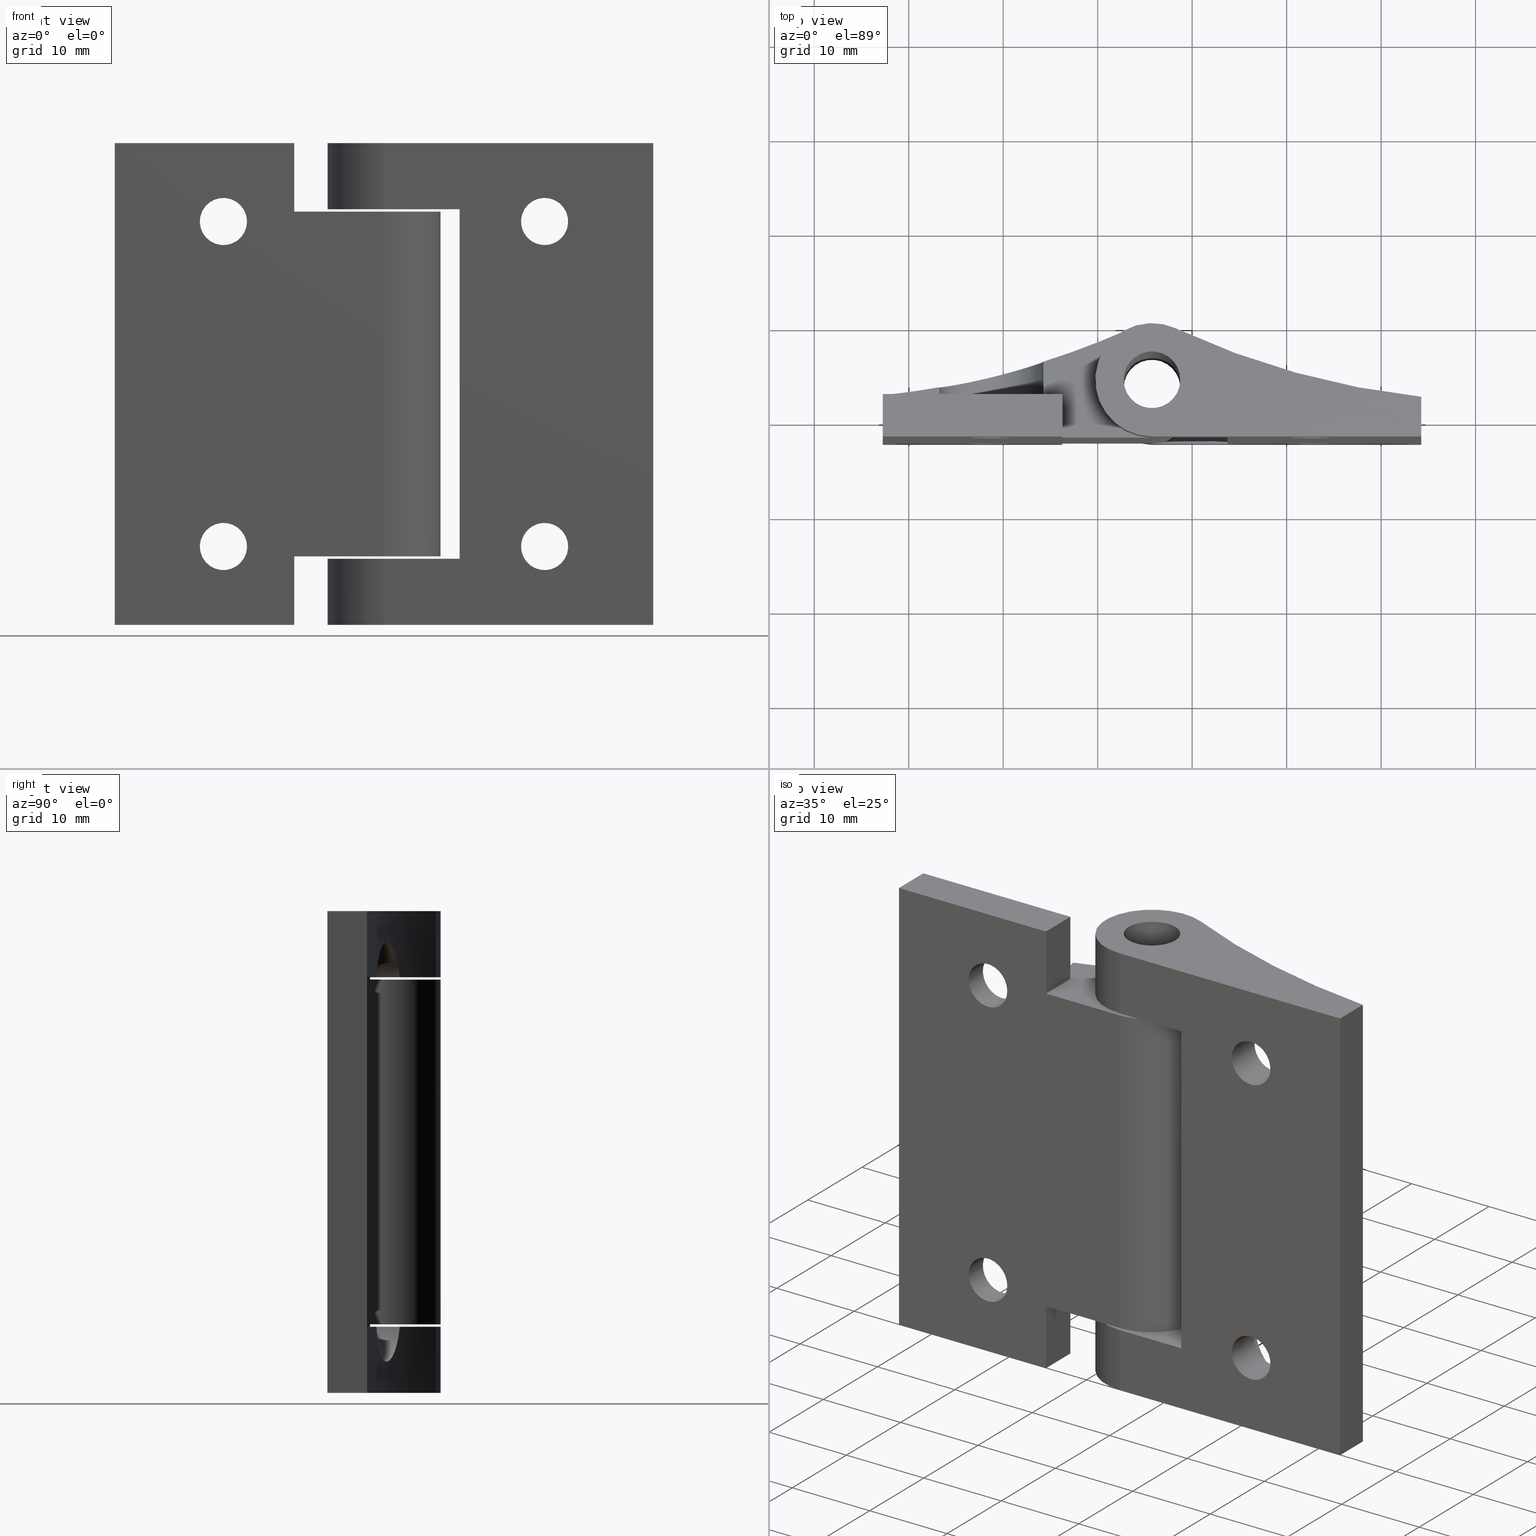
[diagram: canonical four-view strip — front | top / right | iso, engineering-drawing reading convention]
A machine part, canonical four-view strip (front | top / right | iso — engineering-drawing reading convention). The complete STEP part file that produces these views, byte-faithful:
ISO-10303-21;
HEADER;
/* Generated by software containing ST-Developer
 * from STEP Tools, Inc. (www.steptools.com) 
 */

FILE_DESCRIPTION(
/* description */ ('CERNIERA FRIZZIONATA'),
/* implementation_level */ '2;1');

FILE_NAME(
/* name */ 
'Q:\\Catalogo\\2_Accessori Dierre\\Per Download Web e catalogo cartace
o\\CATALOGO ACCESSORI PER RIPARI\\PAGINA 63\\CCRYY0000031.stp',
/* time_stamp */ '2018-11-08T17:41:46+01:00',
/* author */ ('fzagni'),
/* organization */ (''),
/* preprocessor_version */ 'ST-DEVELOPER v16.1',
/* originating_system */ 'Autodesk Inventor 2016',
/* authorisation */ '');

FILE_SCHEMA (('AUTOMOTIVE_DESIGN { 1 0 10303 214 3 1 1 }'));
ENDSEC;

DATA;
#10=MECHANICAL_DESIGN_GEOMETRIC_PRESENTATION_REPRESENTATION('',(#25,#26),
#1398);
#11=ITEM_DEFINED_TRANSFORMATION($,$,#781,#865);
#12=ITEM_DEFINED_TRANSFORMATION($,$,#822,#866);
#13=(
REPRESENTATION_RELATIONSHIP($,$,#1413,#1415)
REPRESENTATION_RELATIONSHIP_WITH_TRANSFORMATION(#11)
SHAPE_REPRESENTATION_RELATIONSHIP()
);
#14=(
REPRESENTATION_RELATIONSHIP($,$,#1414,#1415)
REPRESENTATION_RELATIONSHIP_WITH_TRANSFORMATION(#12)
SHAPE_REPRESENTATION_RELATIONSHIP()
);
#15=CONTEXT_DEPENDENT_SHAPE_REPRESENTATION(#13,#1411);
#16=CONTEXT_DEPENDENT_SHAPE_REPRESENTATION(#14,#1412);
#17=NEXT_ASSEMBLY_USAGE_OCCURRENCE('!B3DTM0017374!!!:1',
'!B3DTM0017374!!!:1','!B3DTM0017374!!!:1',#1419,#1417,
'!B3DTM0017374!!!:1');
#18=NEXT_ASSEMBLY_USAGE_OCCURRENCE('!B3DTM0017375!!!:2',
'!B3DTM0017375!!!:2','!B3DTM0017375!!!:2',#1419,#1418,
'!B3DTM0017375!!!:2');
#19=CONICAL_SURFACE('',#826,2.8,59.);
#20=CONICAL_SURFACE('',#834,2.8,59.);
#21=SHAPE_REPRESENTATION_RELATIONSHIP('SRR','None',#1413,#23);
#22=SHAPE_REPRESENTATION_RELATIONSHIP('SRR','None',#1414,#24);
#23=ADVANCED_BREP_SHAPE_REPRESENTATION('',(#27),#1395);
#24=ADVANCED_BREP_SHAPE_REPRESENTATION('',(#28),#1396);
#25=STYLED_ITEM('',(#1432),#27);
#26=STYLED_ITEM('',(#1432),#28);
#27=MANIFOLD_SOLID_BREP('Solido1',#779);
#28=MANIFOLD_SOLID_BREP('Solido1',#780);
#29=FACE_BOUND('',#121,.T.);
#30=FACE_BOUND('',#123,.T.);
#31=FACE_BOUND('',#126,.T.);
#32=FACE_BOUND('',#127,.T.);
#33=FACE_BOUND('',#129,.T.);
#34=FACE_BOUND('',#131,.T.);
#35=FACE_BOUND('',#136,.T.);
#36=FACE_BOUND('',#138,.T.);
#37=FACE_BOUND('',#142,.T.);
#38=FACE_BOUND('',#144,.T.);
#39=FACE_BOUND('',#145,.T.);
#40=FACE_BOUND('',#148,.T.);
#41=FACE_BOUND('',#151,.T.);
#42=FACE_BOUND('',#156,.T.);
#43=FACE_BOUND('',#161,.T.);
#44=FACE_BOUND('',#163,.T.);
#45=FACE_BOUND('',#165,.T.);
#46=FACE_BOUND('',#171,.T.);
#47=FACE_BOUND('',#173,.T.);
#48=FACE_BOUND('',#176,.T.);
#49=FACE_BOUND('',#177,.T.);
#50=PLANE('',#786);
#51=PLANE('',#788);
#52=PLANE('',#792);
#53=PLANE('',#796);
#54=PLANE('',#798);
#55=PLANE('',#809);
#56=PLANE('',#818);
#57=PLANE('',#819);
#58=PLANE('',#820);
#59=PLANE('',#821);
#60=PLANE('',#829);
#61=PLANE('',#830);
#62=PLANE('',#837);
#63=PLANE('',#838);
#64=PLANE('',#840);
#65=PLANE('',#842);
#66=PLANE('',#852);
#67=PLANE('',#853);
#68=PLANE('',#854);
#69=PLANE('',#857);
#70=PLANE('',#859);
#71=PLANE('',#860);
#72=PLANE('',#861);
#73=PLANE('',#863);
#74=FACE_OUTER_BOUND('',#117,.T.);
#75=FACE_OUTER_BOUND('',#118,.T.);
#76=FACE_OUTER_BOUND('',#119,.T.);
#77=FACE_OUTER_BOUND('',#120,.T.);
#78=FACE_OUTER_BOUND('',#122,.T.);
#79=FACE_OUTER_BOUND('',#124,.T.);
#80=FACE_OUTER_BOUND('',#125,.T.);
#81=FACE_OUTER_BOUND('',#128,.T.);
#82=FACE_OUTER_BOUND('',#130,.T.);
#83=FACE_OUTER_BOUND('',#132,.T.);
#84=FACE_OUTER_BOUND('',#133,.T.);
#85=FACE_OUTER_BOUND('',#134,.T.);
#86=FACE_OUTER_BOUND('',#135,.T.);
#87=FACE_OUTER_BOUND('',#137,.T.);
#88=FACE_OUTER_BOUND('',#139,.T.);
#89=FACE_OUTER_BOUND('',#140,.T.);
#90=FACE_OUTER_BOUND('',#141,.T.);
#91=FACE_OUTER_BOUND('',#143,.T.);
#92=FACE_OUTER_BOUND('',#146,.T.);
#93=FACE_OUTER_BOUND('',#147,.T.);
#94=FACE_OUTER_BOUND('',#149,.T.);
#95=FACE_OUTER_BOUND('',#150,.T.);
#96=FACE_OUTER_BOUND('',#152,.T.);
#97=FACE_OUTER_BOUND('',#153,.T.);
#98=FACE_OUTER_BOUND('',#154,.T.);
#99=FACE_OUTER_BOUND('',#155,.T.);
#100=FACE_OUTER_BOUND('',#157,.T.);
#101=FACE_OUTER_BOUND('',#158,.T.);
#102=FACE_OUTER_BOUND('',#159,.T.);
#103=FACE_OUTER_BOUND('',#160,.T.);
#104=FACE_OUTER_BOUND('',#162,.T.);
#105=FACE_OUTER_BOUND('',#164,.T.);
#106=FACE_OUTER_BOUND('',#166,.T.);
#107=FACE_OUTER_BOUND('',#167,.T.);
#108=FACE_OUTER_BOUND('',#168,.T.);
#109=FACE_OUTER_BOUND('',#169,.T.);
#110=FACE_OUTER_BOUND('',#170,.T.);
#111=FACE_OUTER_BOUND('',#172,.T.);
#112=FACE_OUTER_BOUND('',#174,.T.);
#113=FACE_OUTER_BOUND('',#175,.T.);
#114=FACE_OUTER_BOUND('',#178,.T.);
#115=FACE_OUTER_BOUND('',#179,.T.);
#116=FACE_OUTER_BOUND('',#180,.T.);
#117=EDGE_LOOP('',(#515,#516,#517,#518));
#118=EDGE_LOOP('',(#519,#520,#521,#522));
#119=EDGE_LOOP('',(#523,#524,#525));
#120=EDGE_LOOP('',(#526,#527,#528,#529,#530,#531));
#121=EDGE_LOOP('',(#532));
#122=EDGE_LOOP('',(#533,#534,#535,#536,#537,#538));
#123=EDGE_LOOP('',(#539));
#124=EDGE_LOOP('',(#540,#541,#542));
#125=EDGE_LOOP('',(#543,#544,#545,#546,#547,#548,#549,#550));
#126=EDGE_LOOP('',(#551));
#127=EDGE_LOOP('',(#552));
#128=EDGE_LOOP('',(#553));
#129=EDGE_LOOP('',(#554));
#130=EDGE_LOOP('',(#555));
#131=EDGE_LOOP('',(#556));
#132=EDGE_LOOP('',(#557,#558,#559,#560,#561,#562));
#133=EDGE_LOOP('',(#563,#564,#565,#566,#567,#568));
#134=EDGE_LOOP('',(#569,#570,#571,#572));
#135=EDGE_LOOP('',(#573));
#136=EDGE_LOOP('',(#574));
#137=EDGE_LOOP('',(#575));
#138=EDGE_LOOP('',(#576));
#139=EDGE_LOOP('',(#577,#578,#579,#580));
#140=EDGE_LOOP('',(#581,#582,#583,#584));
#141=EDGE_LOOP('',(#585,#586,#587,#588));
#142=EDGE_LOOP('',(#589));
#143=EDGE_LOOP('',(#590,#591,#592,#593,#594,#595,#596,#597));
#144=EDGE_LOOP('',(#598));
#145=EDGE_LOOP('',(#599));
#146=EDGE_LOOP('',(#600,#601,#602,#603,#604,#605));
#147=EDGE_LOOP('',(#606,#607,#608,#609));
#148=EDGE_LOOP('',(#610));
#149=EDGE_LOOP('',(#611,#612,#613,#614,#615));
#150=EDGE_LOOP('',(#616));
#151=EDGE_LOOP('',(#617,#618));
#152=EDGE_LOOP('',(#619,#620,#621));
#153=EDGE_LOOP('',(#622,#623,#624));
#154=EDGE_LOOP('',(#625,#626,#627,#628,#629));
#155=EDGE_LOOP('',(#630));
#156=EDGE_LOOP('',(#631,#632));
#157=EDGE_LOOP('',(#633,#634,#635,#636,#637,#638));
#158=EDGE_LOOP('',(#639,#640,#641));
#159=EDGE_LOOP('',(#642,#643,#644));
#160=EDGE_LOOP('',(#645,#646,#647,#648,#649,#650,#651));
#161=EDGE_LOOP('',(#652));
#162=EDGE_LOOP('',(#653));
#163=EDGE_LOOP('',(#654));
#164=EDGE_LOOP('',(#655));
#165=EDGE_LOOP('',(#656));
#166=EDGE_LOOP('',(#657,#658,#659,#660,#661,#662,#663,#664,#665,#666));
#167=EDGE_LOOP('',(#667,#668,#669,#670,#671,#672));
#168=EDGE_LOOP('',(#673,#674,#675,#676));
#169=EDGE_LOOP('',(#677,#678,#679,#680));
#170=EDGE_LOOP('',(#681));
#171=EDGE_LOOP('',(#682));
#172=EDGE_LOOP('',(#683,#684,#685,#686,#687,#688,#689));
#173=EDGE_LOOP('',(#690));
#174=EDGE_LOOP('',(#691,#692,#693,#694));
#175=EDGE_LOOP('',(#695,#696,#697,#698,#699,#700,#701,#702));
#176=EDGE_LOOP('',(#703));
#177=EDGE_LOOP('',(#704));
#178=EDGE_LOOP('',(#705,#706,#707,#708));
#179=EDGE_LOOP('',(#709,#710,#711,#712));
#180=EDGE_LOOP('',(#713,#714,#715,#716,#717,#718));
#181=CIRCLE('',#783,5.);
#182=CIRCLE('',#785,5.);
#183=CIRCLE('',#787,82.5240363040418);
#184=CIRCLE('',#789,6.);
#185=CIRCLE('',#790,82.5240363040418);
#186=CIRCLE('',#791,3.);
#187=CIRCLE('',#793,82.5240363040418);
#188=CIRCLE('',#794,6.);
#189=CIRCLE('',#795,3.);
#190=CIRCLE('',#797,82.5240363040418);
#191=CIRCLE('',#799,2.5);
#192=CIRCLE('',#800,2.5);
#193=CIRCLE('',#802,2.5);
#194=CIRCLE('',#804,2.5);
#195=CIRCLE('',#806,82.5240363040418);
#196=CIRCLE('',#808,82.5240363040418);
#197=CIRCLE('',#811,3.);
#198=CIRCLE('',#813,3.);
#199=CIRCLE('',#815,6.);
#200=CIRCLE('',#817,6.);
#201=CIRCLE('',#824,5.6);
#202=CIRCLE('',#825,5.6);
#203=CIRCLE('',#827,2.5);
#204=CIRCLE('',#828,5.6);
#205=CIRCLE('',#831,5.6);
#206=CIRCLE('',#833,5.6);
#207=CIRCLE('',#835,2.5);
#208=CIRCLE('',#836,5.6);
#209=CIRCLE('',#839,85.7362212547211);
#210=CIRCLE('',#841,85.7362212547211);
#211=CIRCLE('',#843,85.7362212547211);
#212=CIRCLE('',#844,6.);
#213=CIRCLE('',#845,3.);
#214=CIRCLE('',#847,2.5);
#215=CIRCLE('',#849,2.5);
#216=CIRCLE('',#851,85.7362212547211);
#217=CIRCLE('',#856,3.);
#218=CIRCLE('',#858,6.);
#219=B_SPLINE_CURVE_WITH_KNOTS('',3,(#1105,#1106,#1107,#1108,#1109,#1110,
#1111,#1112,#1113,#1114,#1115,#1116,#1117,#1118,#1119,#1120,#1121,#1122),
 .UNSPECIFIED.,.F.,.F.,(4,2,2,2,2,2,2,2,4),(1.6587572307552,1.71943175513642,
1.90740226381073,2.10095404263348,2.29450582145622,2.49048069327173,2.68645556508724,
2.87468902900573,2.93540617287786),.UNSPECIFIED.);
#220=B_SPLINE_CURVE_WITH_KNOTS('',3,(#1131,#1132,#1133,#1134,#1135,#1136,
#1137,#1138,#1139,#1140,#1141,#1142,#1143,#1144,#1145,#1146,#1147,#1148),
 .UNSPECIFIED.,.F.,.F.,(4,2,2,2,2,2,2,2,4),(0.127516320046366,0.188233463918491,
0.376466927836981,0.572441799652492,0.768416671468003,0.961968450290747,
1.15552022911349,1.3434907377878,1.40416526216903),.UNSPECIFIED.);
#221=B_SPLINE_CURVE_WITH_KNOTS('',3,(#1244,#1245,#1246,#1247,#1248,#1249,
#1250,#1251,#1252,#1253,#1254,#1255,#1256,#1257,#1258,#1259,#1260,#1261,
#1262,#1263),.UNSPECIFIED.,.F.,.F.,(4,2,2,2,2,2,2,2,2,4),(-1.816147918135,
-1.71323056467301,-1.50267264141732,-1.29211471816164,-1.07591407226793,
-0.859713426374217,-0.640717282606993,-0.421721138839769,-0.210860569419885,
-0.152817432202066),.UNSPECIFIED.);
#222=B_SPLINE_CURVE_WITH_KNOTS('',3,(#1289,#1290,#1291,#1292,#1293,#1294,
#1295,#1296,#1297,#1298,#1299,#1300,#1301,#1302,#1303,#1304,#1305,#1306,
#1307,#1308),.UNSPECIFIED.,.F.,.F.,(4,2,2,2,2,2,2,2,2,4),(0.152817432202066,
0.210860569419885,0.421721138839769,0.640717282606993,0.859713426374216,
1.07591407226793,1.29211471816164,1.50267264141732,1.71323056467301,1.81614791796108),
 .UNSPECIFIED.);
#223=LINE('',#1103,#283);
#224=LINE('',#1124,#284);
#225=LINE('',#1129,#285);
#226=LINE('',#1150,#286);
#227=LINE('',#1155,#287);
#228=LINE('',#1158,#288);
#229=LINE('',#1160,#289);
#230=LINE('',#1162,#290);
#231=LINE('',#1174,#291);
#232=LINE('',#1176,#292);
#233=LINE('',#1177,#293);
#234=LINE('',#1182,#294);
#235=LINE('',#1185,#295);
#236=LINE('',#1186,#296);
#237=LINE('',#1199,#297);
#238=LINE('',#1202,#298);
#239=LINE('',#1205,#299);
#240=LINE('',#1208,#300);
#241=LINE('',#1210,#301);
#242=LINE('',#1219,#302);
#243=LINE('',#1224,#303);
#244=LINE('',#1227,#304);
#245=LINE('',#1228,#305);
#246=LINE('',#1231,#306);
#247=LINE('',#1232,#307);
#248=LINE('',#1234,#308);
#249=LINE('',#1240,#309);
#250=LINE('',#1265,#310);
#251=LINE('',#1273,#311);
#252=LINE('',#1274,#312);
#253=LINE('',#1278,#313);
#254=LINE('',#1281,#314);
#255=LINE('',#1284,#315);
#256=LINE('',#1288,#316);
#257=LINE('',#1315,#317);
#258=LINE('',#1317,#318);
#259=LINE('',#1319,#319);
#260=LINE('',#1321,#320);
#261=LINE('',#1322,#321);
#262=LINE('',#1327,#322);
#263=LINE('',#1335,#323);
#264=LINE('',#1337,#324);
#265=LINE('',#1338,#325);
#266=LINE('',#1350,#326);
#267=LINE('',#1351,#327);
#268=LINE('',#1354,#328);
#269=LINE('',#1356,#329);
#270=LINE('',#1357,#330);
#271=LINE('',#1360,#331);
#272=LINE('',#1362,#332);
#273=LINE('',#1363,#333);
#274=LINE('',#1365,#334);
#275=LINE('',#1371,#335);
#276=LINE('',#1373,#336);
#277=LINE('',#1377,#337);
#278=LINE('',#1378,#338);
#279=LINE('',#1380,#339);
#280=LINE('',#1382,#340);
#281=LINE('',#1383,#341);
#282=LINE('',#1385,#342);
#283=VECTOR('',#871,3.46516702537012);
#284=VECTOR('',#872,0.999501549382583);
#285=VECTOR('',#877,0.999501549382583);
#286=VECTOR('',#878,3.46516702537012);
#287=VECTOR('',#885,6.67195691817068);
#288=VECTOR('',#888,4.17195691816976);
#289=VECTOR('',#889,4.19999999999999);
#290=VECTOR('',#890,8.);
#291=VECTOR('',#903,8.);
#292=VECTOR('',#904,4.19999999999999);
#293=VECTOR('',#905,4.17195691816976);
#294=VECTOR('',#910,6.67195691817068);
#295=VECTOR('',#915,37.);
#296=VECTOR('',#916,37.);
#297=VECTOR('',#931,7.);
#298=VECTOR('',#934,7.);
#299=VECTOR('',#937,7.);
#300=VECTOR('',#940,7.);
#301=VECTOR('',#943,37.);
#302=VECTOR('',#954,7.);
#303=VECTOR('',#961,7.);
#304=VECTOR('',#964,4.2);
#305=VECTOR('',#965,28.4999999999991);
#306=VECTOR('',#968,51.);
#307=VECTOR('',#969,28.4999999999991);
#308=VECTOR('',#972,4.2);
#309=VECTOR('',#979,3.5);
#310=VECTOR('',#982,0.839900027701916);
#311=VECTOR('',#993,0.121601728927749);
#312=VECTOR('',#994,2.60740099139237);
#313=VECTOR('',#997,0.121601728927749);
#314=VECTOR('',#1000,2.60740099139237);
#315=VECTOR('',#1003,3.5);
#316=VECTOR('',#1006,0.839900027701916);
#317=VECTOR('',#1015,5.99931822407441);
#318=VECTOR('',#1016,7.25);
#319=VECTOR('',#1017,18.9999999999991);
#320=VECTOR('',#1018,7.25);
#321=VECTOR('',#1019,1.99931822407349);
#322=VECTOR('',#1026,5.99931822407441);
#323=VECTOR('',#1035,9.5);
#324=VECTOR('',#1036,4.49999999999999);
#325=VECTOR('',#1037,1.99931822407349);
#326=VECTOR('',#1052,36.5);
#327=VECTOR('',#1053,36.5);
#328=VECTOR('',#1056,7.25);
#329=VECTOR('',#1057,18.9999999999991);
#330=VECTOR('',#1058,7.25);
#331=VECTOR('',#1061,4.49999999999999);
#332=VECTOR('',#1062,18.9999999999991);
#333=VECTOR('',#1063,4.5);
#334=VECTOR('',#1066,7.25);
#335=VECTOR('',#1073,4.49999999999999);
#336=VECTOR('',#1074,9.5);
#337=VECTOR('',#1079,4.49999999999999);
#338=VECTOR('',#1080,7.25);
#339=VECTOR('',#1083,36.5);
#340=VECTOR('',#1084,18.9999999999991);
#341=VECTOR('',#1085,51.);
#342=VECTOR('',#1088,4.5);
#343=VERTEX_POINT('',#1101);
#344=VERTEX_POINT('',#1102);
#345=VERTEX_POINT('',#1104);
#346=VERTEX_POINT('',#1123);
#347=VERTEX_POINT('',#1127);
#348=VERTEX_POINT('',#1128);
#349=VERTEX_POINT('',#1130);
#350=VERTEX_POINT('',#1149);
#351=VERTEX_POINT('',#1153);
#352=VERTEX_POINT('',#1157);
#353=VERTEX_POINT('',#1159);
#354=VERTEX_POINT('',#1161);
#355=VERTEX_POINT('',#1163);
#356=VERTEX_POINT('',#1166);
#357=VERTEX_POINT('',#1169);
#358=VERTEX_POINT('',#1171);
#359=VERTEX_POINT('',#1173);
#360=VERTEX_POINT('',#1175);
#361=VERTEX_POINT('',#1178);
#362=VERTEX_POINT('',#1181);
#363=VERTEX_POINT('',#1187);
#364=VERTEX_POINT('',#1189);
#365=VERTEX_POINT('',#1192);
#366=VERTEX_POINT('',#1195);
#367=VERTEX_POINT('',#1198);
#368=VERTEX_POINT('',#1200);
#369=VERTEX_POINT('',#1204);
#370=VERTEX_POINT('',#1206);
#371=VERTEX_POINT('',#1212);
#372=VERTEX_POINT('',#1215);
#373=VERTEX_POINT('',#1218);
#374=VERTEX_POINT('',#1222);
#375=VERTEX_POINT('',#1226);
#376=VERTEX_POINT('',#1230);
#377=VERTEX_POINT('',#1238);
#378=VERTEX_POINT('',#1239);
#379=VERTEX_POINT('',#1241);
#380=VERTEX_POINT('',#1243);
#381=VERTEX_POINT('',#1264);
#382=VERTEX_POINT('',#1268);
#383=VERTEX_POINT('',#1272);
#384=VERTEX_POINT('',#1276);
#385=VERTEX_POINT('',#1277);
#386=VERTEX_POINT('',#1279);
#387=VERTEX_POINT('',#1283);
#388=VERTEX_POINT('',#1285);
#389=VERTEX_POINT('',#1287);
#390=VERTEX_POINT('',#1310);
#391=VERTEX_POINT('',#1314);
#392=VERTEX_POINT('',#1316);
#393=VERTEX_POINT('',#1318);
#394=VERTEX_POINT('',#1320);
#395=VERTEX_POINT('',#1326);
#396=VERTEX_POINT('',#1330);
#397=VERTEX_POINT('',#1332);
#398=VERTEX_POINT('',#1334);
#399=VERTEX_POINT('',#1336);
#400=VERTEX_POINT('',#1339);
#401=VERTEX_POINT('',#1342);
#402=VERTEX_POINT('',#1345);
#403=VERTEX_POINT('',#1348);
#404=VERTEX_POINT('',#1353);
#405=VERTEX_POINT('',#1355);
#406=VERTEX_POINT('',#1359);
#407=VERTEX_POINT('',#1361);
#408=VERTEX_POINT('',#1367);
#409=VERTEX_POINT('',#1370);
#410=VERTEX_POINT('',#1372);
#411=VERTEX_POINT('',#1376);
#412=VERTEX_POINT('',#1381);
#413=EDGE_CURVE('',#343,#344,#223,.T.);
#414=EDGE_CURVE('',#345,#343,#219,.T.);
#415=EDGE_CURVE('',#346,#345,#224,.T.);
#416=EDGE_CURVE('',#344,#346,#181,.T.);
#417=EDGE_CURVE('',#347,#348,#225,.T.);
#418=EDGE_CURVE('',#349,#347,#220,.T.);
#419=EDGE_CURVE('',#350,#349,#226,.T.);
#420=EDGE_CURVE('',#348,#350,#182,.T.);
#421=EDGE_CURVE('',#351,#345,#183,.T.);
#422=EDGE_CURVE('',#351,#346,#227,.T.);
#423=EDGE_CURVE('',#344,#352,#228,.T.);
#424=EDGE_CURVE('',#352,#353,#229,.T.);
#425=EDGE_CURVE('',#354,#353,#230,.T.);
#426=EDGE_CURVE('',#355,#354,#184,.T.);
#427=EDGE_CURVE('',#343,#355,#185,.T.);
#428=EDGE_CURVE('',#356,#356,#186,.T.);
#429=EDGE_CURVE('',#357,#349,#187,.T.);
#430=EDGE_CURVE('',#358,#357,#188,.T.);
#431=EDGE_CURVE('',#359,#358,#231,.T.);
#432=EDGE_CURVE('',#360,#359,#232,.T.);
#433=EDGE_CURVE('',#350,#360,#233,.T.);
#434=EDGE_CURVE('',#361,#361,#189,.T.);
#435=EDGE_CURVE('',#362,#348,#234,.T.);
#436=EDGE_CURVE('',#347,#362,#190,.T.);
#437=EDGE_CURVE('',#362,#351,#235,.T.);
#438=EDGE_CURVE('',#352,#360,#236,.T.);
#439=EDGE_CURVE('',#363,#363,#191,.T.);
#440=EDGE_CURVE('',#364,#364,#192,.T.);
#441=EDGE_CURVE('',#365,#365,#193,.T.);
#442=EDGE_CURVE('',#366,#366,#194,.T.);
#443=EDGE_CURVE('',#367,#362,#237,.T.);
#444=EDGE_CURVE('',#368,#367,#195,.T.);
#445=EDGE_CURVE('',#368,#357,#238,.T.);
#446=EDGE_CURVE('',#355,#369,#239,.T.);
#447=EDGE_CURVE('',#370,#369,#196,.T.);
#448=EDGE_CURVE('',#351,#370,#240,.T.);
#449=EDGE_CURVE('',#353,#359,#241,.T.);
#450=EDGE_CURVE('',#371,#371,#197,.T.);
#451=EDGE_CURVE('',#372,#372,#198,.T.);
#452=EDGE_CURVE('',#354,#373,#242,.T.);
#453=EDGE_CURVE('',#369,#373,#199,.T.);
#454=EDGE_CURVE('',#374,#368,#200,.T.);
#455=EDGE_CURVE('',#374,#358,#243,.T.);
#456=EDGE_CURVE('',#367,#375,#244,.T.);
#457=EDGE_CURVE('',#375,#374,#245,.T.);
#458=EDGE_CURVE('',#376,#375,#246,.T.);
#459=EDGE_CURVE('',#373,#376,#247,.T.);
#460=EDGE_CURVE('',#376,#370,#248,.T.);
#461=EDGE_CURVE('',#377,#378,#249,.T.);
#462=EDGE_CURVE('',#379,#377,#201,.T.);
#463=EDGE_CURVE('',#380,#379,#221,.T.);
#464=EDGE_CURVE('',#381,#380,#250,.T.);
#465=EDGE_CURVE('',#378,#381,#202,.T.);
#466=EDGE_CURVE('',#382,#382,#203,.T.);
#467=EDGE_CURVE('',#378,#381,#204,.T.);
#468=EDGE_CURVE('',#383,#377,#251,.T.);
#469=EDGE_CURVE('',#379,#383,#252,.T.);
#470=EDGE_CURVE('',#384,#385,#253,.T.);
#471=EDGE_CURVE('',#384,#386,#205,.T.);
#472=EDGE_CURVE('',#385,#386,#254,.T.);
#473=EDGE_CURVE('',#387,#384,#255,.T.);
#474=EDGE_CURVE('',#388,#387,#206,.T.);
#475=EDGE_CURVE('',#389,#388,#256,.T.);
#476=EDGE_CURVE('',#386,#389,#222,.T.);
#477=EDGE_CURVE('',#390,#390,#207,.T.);
#478=EDGE_CURVE('',#388,#387,#208,.T.);
#479=EDGE_CURVE('',#381,#391,#257,.T.);
#480=EDGE_CURVE('',#392,#391,#258,.T.);
#481=EDGE_CURVE('',#393,#392,#259,.T.);
#482=EDGE_CURVE('',#394,#393,#260,.T.);
#483=EDGE_CURVE('',#394,#378,#261,.T.);
#484=EDGE_CURVE('',#391,#380,#209,.T.);
#485=EDGE_CURVE('',#395,#388,#262,.T.);
#486=EDGE_CURVE('',#389,#395,#210,.T.);
#487=EDGE_CURVE('',#396,#385,#211,.T.);
#488=EDGE_CURVE('',#397,#396,#212,.T.);
#489=EDGE_CURVE('',#398,#397,#263,.T.);
#490=EDGE_CURVE('',#399,#398,#264,.T.);
#491=EDGE_CURVE('',#387,#399,#265,.T.);
#492=EDGE_CURVE('',#400,#400,#213,.T.);
#493=EDGE_CURVE('',#401,#401,#214,.T.);
#494=EDGE_CURVE('',#402,#402,#215,.T.);
#495=EDGE_CURVE('',#383,#403,#216,.T.);
#496=EDGE_CURVE('',#403,#396,#266,.T.);
#497=EDGE_CURVE('',#391,#395,#267,.T.);
#498=EDGE_CURVE('',#404,#399,#268,.T.);
#499=EDGE_CURVE('',#405,#404,#269,.T.);
#500=EDGE_CURVE('',#395,#405,#270,.T.);
#501=EDGE_CURVE('',#404,#406,#271,.T.);
#502=EDGE_CURVE('',#406,#407,#272,.T.);
#503=EDGE_CURVE('',#407,#405,#273,.T.);
#504=EDGE_CURVE('',#406,#398,#274,.T.);
#505=EDGE_CURVE('',#408,#408,#217,.T.);
#506=EDGE_CURVE('',#394,#409,#275,.T.);
#507=EDGE_CURVE('',#410,#409,#276,.T.);
#508=EDGE_CURVE('',#403,#410,#218,.T.);
#509=EDGE_CURVE('',#411,#393,#277,.T.);
#510=EDGE_CURVE('',#409,#411,#278,.T.);
#511=EDGE_CURVE('',#397,#410,#279,.T.);
#512=EDGE_CURVE('',#412,#411,#280,.T.);
#513=EDGE_CURVE('',#412,#407,#281,.T.);
#514=EDGE_CURVE('',#392,#412,#282,.T.);
#515=ORIENTED_EDGE('',*,*,#413,.F.);
#516=ORIENTED_EDGE('',*,*,#414,.F.);
#517=ORIENTED_EDGE('',*,*,#415,.F.);
#518=ORIENTED_EDGE('',*,*,#416,.F.);
#519=ORIENTED_EDGE('',*,*,#417,.F.);
#520=ORIENTED_EDGE('',*,*,#418,.F.);
#521=ORIENTED_EDGE('',*,*,#419,.F.);
#522=ORIENTED_EDGE('',*,*,#420,.F.);
#523=ORIENTED_EDGE('',*,*,#415,.T.);
#524=ORIENTED_EDGE('',*,*,#421,.F.);
#525=ORIENTED_EDGE('',*,*,#422,.T.);
#526=ORIENTED_EDGE('',*,*,#413,.T.);
#527=ORIENTED_EDGE('',*,*,#423,.T.);
#528=ORIENTED_EDGE('',*,*,#424,.T.);
#529=ORIENTED_EDGE('',*,*,#425,.F.);
#530=ORIENTED_EDGE('',*,*,#426,.F.);
#531=ORIENTED_EDGE('',*,*,#427,.F.);
#532=ORIENTED_EDGE('',*,*,#428,.T.);
#533=ORIENTED_EDGE('',*,*,#419,.T.);
#534=ORIENTED_EDGE('',*,*,#429,.F.);
#535=ORIENTED_EDGE('',*,*,#430,.F.);
#536=ORIENTED_EDGE('',*,*,#431,.F.);
#537=ORIENTED_EDGE('',*,*,#432,.F.);
#538=ORIENTED_EDGE('',*,*,#433,.F.);
#539=ORIENTED_EDGE('',*,*,#434,.T.);
#540=ORIENTED_EDGE('',*,*,#417,.T.);
#541=ORIENTED_EDGE('',*,*,#435,.F.);
#542=ORIENTED_EDGE('',*,*,#436,.F.);
#543=ORIENTED_EDGE('',*,*,#422,.F.);
#544=ORIENTED_EDGE('',*,*,#437,.F.);
#545=ORIENTED_EDGE('',*,*,#435,.T.);
#546=ORIENTED_EDGE('',*,*,#420,.T.);
#547=ORIENTED_EDGE('',*,*,#433,.T.);
#548=ORIENTED_EDGE('',*,*,#438,.F.);
#549=ORIENTED_EDGE('',*,*,#423,.F.);
#550=ORIENTED_EDGE('',*,*,#416,.T.);
#551=ORIENTED_EDGE('',*,*,#439,.T.);
#552=ORIENTED_EDGE('',*,*,#440,.T.);
#553=ORIENTED_EDGE('',*,*,#441,.F.);
#554=ORIENTED_EDGE('',*,*,#439,.F.);
#555=ORIENTED_EDGE('',*,*,#442,.F.);
#556=ORIENTED_EDGE('',*,*,#440,.F.);
#557=ORIENTED_EDGE('',*,*,#418,.T.);
#558=ORIENTED_EDGE('',*,*,#436,.T.);
#559=ORIENTED_EDGE('',*,*,#443,.F.);
#560=ORIENTED_EDGE('',*,*,#444,.F.);
#561=ORIENTED_EDGE('',*,*,#445,.T.);
#562=ORIENTED_EDGE('',*,*,#429,.T.);
#563=ORIENTED_EDGE('',*,*,#414,.T.);
#564=ORIENTED_EDGE('',*,*,#427,.T.);
#565=ORIENTED_EDGE('',*,*,#446,.T.);
#566=ORIENTED_EDGE('',*,*,#447,.F.);
#567=ORIENTED_EDGE('',*,*,#448,.F.);
#568=ORIENTED_EDGE('',*,*,#421,.T.);
#569=ORIENTED_EDGE('',*,*,#438,.T.);
#570=ORIENTED_EDGE('',*,*,#432,.T.);
#571=ORIENTED_EDGE('',*,*,#449,.F.);
#572=ORIENTED_EDGE('',*,*,#424,.F.);
#573=ORIENTED_EDGE('',*,*,#450,.F.);
#574=ORIENTED_EDGE('',*,*,#428,.F.);
#575=ORIENTED_EDGE('',*,*,#434,.F.);
#576=ORIENTED_EDGE('',*,*,#451,.F.);
#577=ORIENTED_EDGE('',*,*,#426,.T.);
#578=ORIENTED_EDGE('',*,*,#452,.T.);
#579=ORIENTED_EDGE('',*,*,#453,.F.);
#580=ORIENTED_EDGE('',*,*,#446,.F.);
#581=ORIENTED_EDGE('',*,*,#430,.T.);
#582=ORIENTED_EDGE('',*,*,#445,.F.);
#583=ORIENTED_EDGE('',*,*,#454,.F.);
#584=ORIENTED_EDGE('',*,*,#455,.T.);
#585=ORIENTED_EDGE('',*,*,#456,.T.);
#586=ORIENTED_EDGE('',*,*,#457,.T.);
#587=ORIENTED_EDGE('',*,*,#454,.T.);
#588=ORIENTED_EDGE('',*,*,#444,.T.);
#589=ORIENTED_EDGE('',*,*,#451,.T.);
#590=ORIENTED_EDGE('',*,*,#431,.T.);
#591=ORIENTED_EDGE('',*,*,#455,.F.);
#592=ORIENTED_EDGE('',*,*,#457,.F.);
#593=ORIENTED_EDGE('',*,*,#458,.F.);
#594=ORIENTED_EDGE('',*,*,#459,.F.);
#595=ORIENTED_EDGE('',*,*,#452,.F.);
#596=ORIENTED_EDGE('',*,*,#425,.T.);
#597=ORIENTED_EDGE('',*,*,#449,.T.);
#598=ORIENTED_EDGE('',*,*,#441,.T.);
#599=ORIENTED_EDGE('',*,*,#442,.T.);
#600=ORIENTED_EDGE('',*,*,#443,.T.);
#601=ORIENTED_EDGE('',*,*,#437,.T.);
#602=ORIENTED_EDGE('',*,*,#448,.T.);
#603=ORIENTED_EDGE('',*,*,#460,.F.);
#604=ORIENTED_EDGE('',*,*,#458,.T.);
#605=ORIENTED_EDGE('',*,*,#456,.F.);
#606=ORIENTED_EDGE('',*,*,#460,.T.);
#607=ORIENTED_EDGE('',*,*,#447,.T.);
#608=ORIENTED_EDGE('',*,*,#453,.T.);
#609=ORIENTED_EDGE('',*,*,#459,.T.);
#610=ORIENTED_EDGE('',*,*,#450,.T.);
#611=ORIENTED_EDGE('',*,*,#461,.F.);
#612=ORIENTED_EDGE('',*,*,#462,.F.);
#613=ORIENTED_EDGE('',*,*,#463,.F.);
#614=ORIENTED_EDGE('',*,*,#464,.F.);
#615=ORIENTED_EDGE('',*,*,#465,.F.);
#616=ORIENTED_EDGE('',*,*,#466,.F.);
#617=ORIENTED_EDGE('',*,*,#465,.T.);
#618=ORIENTED_EDGE('',*,*,#467,.F.);
#619=ORIENTED_EDGE('',*,*,#468,.F.);
#620=ORIENTED_EDGE('',*,*,#469,.F.);
#621=ORIENTED_EDGE('',*,*,#462,.T.);
#622=ORIENTED_EDGE('',*,*,#470,.F.);
#623=ORIENTED_EDGE('',*,*,#471,.T.);
#624=ORIENTED_EDGE('',*,*,#472,.F.);
#625=ORIENTED_EDGE('',*,*,#473,.F.);
#626=ORIENTED_EDGE('',*,*,#474,.F.);
#627=ORIENTED_EDGE('',*,*,#475,.F.);
#628=ORIENTED_EDGE('',*,*,#476,.F.);
#629=ORIENTED_EDGE('',*,*,#471,.F.);
#630=ORIENTED_EDGE('',*,*,#477,.F.);
#631=ORIENTED_EDGE('',*,*,#474,.T.);
#632=ORIENTED_EDGE('',*,*,#478,.F.);
#633=ORIENTED_EDGE('',*,*,#467,.T.);
#634=ORIENTED_EDGE('',*,*,#479,.T.);
#635=ORIENTED_EDGE('',*,*,#480,.F.);
#636=ORIENTED_EDGE('',*,*,#481,.F.);
#637=ORIENTED_EDGE('',*,*,#482,.F.);
#638=ORIENTED_EDGE('',*,*,#483,.T.);
#639=ORIENTED_EDGE('',*,*,#464,.T.);
#640=ORIENTED_EDGE('',*,*,#484,.F.);
#641=ORIENTED_EDGE('',*,*,#479,.F.);
#642=ORIENTED_EDGE('',*,*,#475,.T.);
#643=ORIENTED_EDGE('',*,*,#485,.F.);
#644=ORIENTED_EDGE('',*,*,#486,.F.);
#645=ORIENTED_EDGE('',*,*,#473,.T.);
#646=ORIENTED_EDGE('',*,*,#470,.T.);
#647=ORIENTED_EDGE('',*,*,#487,.F.);
#648=ORIENTED_EDGE('',*,*,#488,.F.);
#649=ORIENTED_EDGE('',*,*,#489,.F.);
#650=ORIENTED_EDGE('',*,*,#490,.F.);
#651=ORIENTED_EDGE('',*,*,#491,.F.);
#652=ORIENTED_EDGE('',*,*,#492,.T.);
#653=ORIENTED_EDGE('',*,*,#477,.T.);
#654=ORIENTED_EDGE('',*,*,#493,.F.);
#655=ORIENTED_EDGE('',*,*,#466,.T.);
#656=ORIENTED_EDGE('',*,*,#494,.F.);
#657=ORIENTED_EDGE('',*,*,#469,.T.);
#658=ORIENTED_EDGE('',*,*,#495,.T.);
#659=ORIENTED_EDGE('',*,*,#496,.T.);
#660=ORIENTED_EDGE('',*,*,#487,.T.);
#661=ORIENTED_EDGE('',*,*,#472,.T.);
#662=ORIENTED_EDGE('',*,*,#476,.T.);
#663=ORIENTED_EDGE('',*,*,#486,.T.);
#664=ORIENTED_EDGE('',*,*,#497,.F.);
#665=ORIENTED_EDGE('',*,*,#484,.T.);
#666=ORIENTED_EDGE('',*,*,#463,.T.);
#667=ORIENTED_EDGE('',*,*,#478,.T.);
#668=ORIENTED_EDGE('',*,*,#491,.T.);
#669=ORIENTED_EDGE('',*,*,#498,.F.);
#670=ORIENTED_EDGE('',*,*,#499,.F.);
#671=ORIENTED_EDGE('',*,*,#500,.F.);
#672=ORIENTED_EDGE('',*,*,#485,.T.);
#673=ORIENTED_EDGE('',*,*,#499,.T.);
#674=ORIENTED_EDGE('',*,*,#501,.T.);
#675=ORIENTED_EDGE('',*,*,#502,.T.);
#676=ORIENTED_EDGE('',*,*,#503,.T.);
#677=ORIENTED_EDGE('',*,*,#498,.T.);
#678=ORIENTED_EDGE('',*,*,#490,.T.);
#679=ORIENTED_EDGE('',*,*,#504,.F.);
#680=ORIENTED_EDGE('',*,*,#501,.F.);
#681=ORIENTED_EDGE('',*,*,#505,.F.);
#682=ORIENTED_EDGE('',*,*,#492,.F.);
#683=ORIENTED_EDGE('',*,*,#461,.T.);
#684=ORIENTED_EDGE('',*,*,#483,.F.);
#685=ORIENTED_EDGE('',*,*,#506,.T.);
#686=ORIENTED_EDGE('',*,*,#507,.F.);
#687=ORIENTED_EDGE('',*,*,#508,.F.);
#688=ORIENTED_EDGE('',*,*,#495,.F.);
#689=ORIENTED_EDGE('',*,*,#468,.T.);
#690=ORIENTED_EDGE('',*,*,#505,.T.);
#691=ORIENTED_EDGE('',*,*,#482,.T.);
#692=ORIENTED_EDGE('',*,*,#509,.F.);
#693=ORIENTED_EDGE('',*,*,#510,.F.);
#694=ORIENTED_EDGE('',*,*,#506,.F.);
#695=ORIENTED_EDGE('',*,*,#504,.T.);
#696=ORIENTED_EDGE('',*,*,#489,.T.);
#697=ORIENTED_EDGE('',*,*,#511,.T.);
#698=ORIENTED_EDGE('',*,*,#507,.T.);
#699=ORIENTED_EDGE('',*,*,#510,.T.);
#700=ORIENTED_EDGE('',*,*,#512,.F.);
#701=ORIENTED_EDGE('',*,*,#513,.T.);
#702=ORIENTED_EDGE('',*,*,#502,.F.);
#703=ORIENTED_EDGE('',*,*,#493,.T.);
#704=ORIENTED_EDGE('',*,*,#494,.T.);
#705=ORIENTED_EDGE('',*,*,#481,.T.);
#706=ORIENTED_EDGE('',*,*,#514,.T.);
#707=ORIENTED_EDGE('',*,*,#512,.T.);
#708=ORIENTED_EDGE('',*,*,#509,.T.);
#709=ORIENTED_EDGE('',*,*,#488,.T.);
#710=ORIENTED_EDGE('',*,*,#496,.F.);
#711=ORIENTED_EDGE('',*,*,#508,.T.);
#712=ORIENTED_EDGE('',*,*,#511,.F.);
#713=ORIENTED_EDGE('',*,*,#480,.T.);
#714=ORIENTED_EDGE('',*,*,#497,.T.);
#715=ORIENTED_EDGE('',*,*,#500,.T.);
#716=ORIENTED_EDGE('',*,*,#503,.F.);
#717=ORIENTED_EDGE('',*,*,#513,.F.);
#718=ORIENTED_EDGE('',*,*,#514,.F.);
#719=CYLINDRICAL_SURFACE('',#782,5.);
#720=CYLINDRICAL_SURFACE('',#784,5.);
#721=CYLINDRICAL_SURFACE('',#801,2.5);
#722=CYLINDRICAL_SURFACE('',#803,2.5);
#723=CYLINDRICAL_SURFACE('',#805,82.5240363040418);
#724=CYLINDRICAL_SURFACE('',#807,82.5240363040418);
#725=CYLINDRICAL_SURFACE('',#810,3.);
#726=CYLINDRICAL_SURFACE('',#812,3.);
#727=CYLINDRICAL_SURFACE('',#814,6.);
#728=CYLINDRICAL_SURFACE('',#816,6.);
#729=CYLINDRICAL_SURFACE('',#823,5.6);
#730=CYLINDRICAL_SURFACE('',#832,5.6);
#731=CYLINDRICAL_SURFACE('',#846,2.5);
#732=CYLINDRICAL_SURFACE('',#848,2.5);
#733=CYLINDRICAL_SURFACE('',#850,85.7362212547211);
#734=CYLINDRICAL_SURFACE('',#855,3.);
#735=CYLINDRICAL_SURFACE('',#862,6.);
#736=ADVANCED_FACE('',(#74),#719,.F.);
#737=ADVANCED_FACE('',(#75),#720,.F.);
#738=ADVANCED_FACE('',(#76),#50,.F.);
#739=ADVANCED_FACE('',(#77,#29),#51,.F.);
#740=ADVANCED_FACE('',(#78,#30),#52,.F.);
#741=ADVANCED_FACE('',(#79),#53,.F.);
#742=ADVANCED_FACE('',(#80,#31,#32),#54,.F.);
#743=ADVANCED_FACE('',(#81,#33),#721,.F.);
#744=ADVANCED_FACE('',(#82,#34),#722,.F.);
#745=ADVANCED_FACE('',(#83),#723,.F.);
#746=ADVANCED_FACE('',(#84),#724,.F.);
#747=ADVANCED_FACE('',(#85),#55,.F.);
#748=ADVANCED_FACE('',(#86,#35),#725,.F.);
#749=ADVANCED_FACE('',(#87,#36),#726,.F.);
#750=ADVANCED_FACE('',(#88),#727,.T.);
#751=ADVANCED_FACE('',(#89),#728,.T.);
#752=ADVANCED_FACE('',(#90,#37),#56,.F.);
#753=ADVANCED_FACE('',(#91,#38,#39),#57,.T.);
#754=ADVANCED_FACE('',(#92),#58,.T.);
#755=ADVANCED_FACE('',(#93,#40),#59,.T.);
#756=ADVANCED_FACE('',(#94),#729,.F.);
#757=ADVANCED_FACE('',(#95,#41),#19,.F.);
#758=ADVANCED_FACE('',(#96),#60,.T.);
#759=ADVANCED_FACE('',(#97),#61,.T.);
#760=ADVANCED_FACE('',(#98),#730,.F.);
#761=ADVANCED_FACE('',(#99,#42),#20,.F.);
#762=ADVANCED_FACE('',(#100),#62,.F.);
#763=ADVANCED_FACE('',(#101),#63,.F.);
#764=ADVANCED_FACE('',(#102),#64,.F.);
#765=ADVANCED_FACE('',(#103,#43),#65,.F.);
#766=ADVANCED_FACE('',(#104,#44),#731,.F.);
#767=ADVANCED_FACE('',(#105,#45),#732,.F.);
#768=ADVANCED_FACE('',(#106),#733,.F.);
#769=ADVANCED_FACE('',(#107),#66,.F.);
#770=ADVANCED_FACE('',(#108),#67,.T.);
#771=ADVANCED_FACE('',(#109),#68,.F.);
#772=ADVANCED_FACE('',(#110,#46),#734,.F.);
#773=ADVANCED_FACE('',(#111,#47),#69,.F.);
#774=ADVANCED_FACE('',(#112),#70,.F.);
#775=ADVANCED_FACE('',(#113,#48,#49),#71,.T.);
#776=ADVANCED_FACE('',(#114),#72,.F.);
#777=ADVANCED_FACE('',(#115),#735,.T.);
#778=ADVANCED_FACE('',(#116),#73,.T.);
#779=CLOSED_SHELL('',(#736,#737,#738,#739,#740,#741,#742,#743,#744,#745,
#746,#747,#748,#749,#750,#751,#752,#753,#754,#755));
#780=CLOSED_SHELL('',(#756,#757,#758,#759,#760,#761,#762,#763,#764,#765,
#766,#767,#768,#769,#770,#771,#772,#773,#774,#775,#776,#777,#778));
#781=AXIS2_PLACEMENT_3D('placement',#1099,#867,#868);
#782=AXIS2_PLACEMENT_3D('',#1100,#869,#870);
#783=AXIS2_PLACEMENT_3D('',#1125,#873,#874);
#784=AXIS2_PLACEMENT_3D('',#1126,#875,#876);
#785=AXIS2_PLACEMENT_3D('',#1151,#879,#880);
#786=AXIS2_PLACEMENT_3D('',#1152,#881,#882);
#787=AXIS2_PLACEMENT_3D('',#1154,#883,#884);
#788=AXIS2_PLACEMENT_3D('',#1156,#886,#887);
#789=AXIS2_PLACEMENT_3D('',#1164,#891,#892);
#790=AXIS2_PLACEMENT_3D('',#1165,#893,#894);
#791=AXIS2_PLACEMENT_3D('',#1167,#895,#896);
#792=AXIS2_PLACEMENT_3D('',#1168,#897,#898);
#793=AXIS2_PLACEMENT_3D('',#1170,#899,#900);
#794=AXIS2_PLACEMENT_3D('',#1172,#901,#902);
#795=AXIS2_PLACEMENT_3D('',#1179,#906,#907);
#796=AXIS2_PLACEMENT_3D('',#1180,#908,#909);
#797=AXIS2_PLACEMENT_3D('',#1183,#911,#912);
#798=AXIS2_PLACEMENT_3D('',#1184,#913,#914);
#799=AXIS2_PLACEMENT_3D('',#1188,#917,#918);
#800=AXIS2_PLACEMENT_3D('',#1190,#919,#920);
#801=AXIS2_PLACEMENT_3D('',#1191,#921,#922);
#802=AXIS2_PLACEMENT_3D('',#1193,#923,#924);
#803=AXIS2_PLACEMENT_3D('',#1194,#925,#926);
#804=AXIS2_PLACEMENT_3D('',#1196,#927,#928);
#805=AXIS2_PLACEMENT_3D('',#1197,#929,#930);
#806=AXIS2_PLACEMENT_3D('',#1201,#932,#933);
#807=AXIS2_PLACEMENT_3D('',#1203,#935,#936);
#808=AXIS2_PLACEMENT_3D('',#1207,#938,#939);
#809=AXIS2_PLACEMENT_3D('',#1209,#941,#942);
#810=AXIS2_PLACEMENT_3D('',#1211,#944,#945);
#811=AXIS2_PLACEMENT_3D('',#1213,#946,#947);
#812=AXIS2_PLACEMENT_3D('',#1214,#948,#949);
#813=AXIS2_PLACEMENT_3D('',#1216,#950,#951);
#814=AXIS2_PLACEMENT_3D('',#1217,#952,#953);
#815=AXIS2_PLACEMENT_3D('',#1220,#955,#956);
#816=AXIS2_PLACEMENT_3D('',#1221,#957,#958);
#817=AXIS2_PLACEMENT_3D('',#1223,#959,#960);
#818=AXIS2_PLACEMENT_3D('',#1225,#962,#963);
#819=AXIS2_PLACEMENT_3D('',#1229,#966,#967);
#820=AXIS2_PLACEMENT_3D('',#1233,#970,#971);
#821=AXIS2_PLACEMENT_3D('',#1235,#973,#974);
#822=AXIS2_PLACEMENT_3D('placement',#1236,#975,#976);
#823=AXIS2_PLACEMENT_3D('',#1237,#977,#978);
#824=AXIS2_PLACEMENT_3D('',#1242,#980,#981);
#825=AXIS2_PLACEMENT_3D('',#1266,#983,#984);
#826=AXIS2_PLACEMENT_3D('',#1267,#985,#986);
#827=AXIS2_PLACEMENT_3D('',#1269,#987,#988);
#828=AXIS2_PLACEMENT_3D('',#1270,#989,#990);
#829=AXIS2_PLACEMENT_3D('',#1271,#991,#992);
#830=AXIS2_PLACEMENT_3D('',#1275,#995,#996);
#831=AXIS2_PLACEMENT_3D('',#1280,#998,#999);
#832=AXIS2_PLACEMENT_3D('',#1282,#1001,#1002);
#833=AXIS2_PLACEMENT_3D('',#1286,#1004,#1005);
#834=AXIS2_PLACEMENT_3D('',#1309,#1007,#1008);
#835=AXIS2_PLACEMENT_3D('',#1311,#1009,#1010);
#836=AXIS2_PLACEMENT_3D('',#1312,#1011,#1012);
#837=AXIS2_PLACEMENT_3D('',#1313,#1013,#1014);
#838=AXIS2_PLACEMENT_3D('',#1323,#1020,#1021);
#839=AXIS2_PLACEMENT_3D('',#1324,#1022,#1023);
#840=AXIS2_PLACEMENT_3D('',#1325,#1024,#1025);
#841=AXIS2_PLACEMENT_3D('',#1328,#1027,#1028);
#842=AXIS2_PLACEMENT_3D('',#1329,#1029,#1030);
#843=AXIS2_PLACEMENT_3D('',#1331,#1031,#1032);
#844=AXIS2_PLACEMENT_3D('',#1333,#1033,#1034);
#845=AXIS2_PLACEMENT_3D('',#1340,#1038,#1039);
#846=AXIS2_PLACEMENT_3D('',#1341,#1040,#1041);
#847=AXIS2_PLACEMENT_3D('',#1343,#1042,#1043);
#848=AXIS2_PLACEMENT_3D('',#1344,#1044,#1045);
#849=AXIS2_PLACEMENT_3D('',#1346,#1046,#1047);
#850=AXIS2_PLACEMENT_3D('',#1347,#1048,#1049);
#851=AXIS2_PLACEMENT_3D('',#1349,#1050,#1051);
#852=AXIS2_PLACEMENT_3D('',#1352,#1054,#1055);
#853=AXIS2_PLACEMENT_3D('',#1358,#1059,#1060);
#854=AXIS2_PLACEMENT_3D('',#1364,#1064,#1065);
#855=AXIS2_PLACEMENT_3D('',#1366,#1067,#1068);
#856=AXIS2_PLACEMENT_3D('',#1368,#1069,#1070);
#857=AXIS2_PLACEMENT_3D('',#1369,#1071,#1072);
#858=AXIS2_PLACEMENT_3D('',#1374,#1075,#1076);
#859=AXIS2_PLACEMENT_3D('',#1375,#1077,#1078);
#860=AXIS2_PLACEMENT_3D('',#1379,#1081,#1082);
#861=AXIS2_PLACEMENT_3D('',#1384,#1086,#1087);
#862=AXIS2_PLACEMENT_3D('',#1386,#1089,#1090);
#863=AXIS2_PLACEMENT_3D('',#1387,#1091,#1092);
#864=AXIS2_PLACEMENT_3D('placement',#1388,#1093,#1094);
#865=AXIS2_PLACEMENT_3D('',#1389,#1095,#1096);
#866=AXIS2_PLACEMENT_3D('',#1390,#1097,#1098);
#867=DIRECTION('axis',(0.,0.,1.));
#868=DIRECTION('refdir',(1.,0.,0.));
#869=DIRECTION('center_axis',(-5.30976229168567E-16,1.,0.));
#870=DIRECTION('ref_axis',(1.,5.30976229168567E-16,0.));
#871=DIRECTION('',(5.30976229168567E-16,-1.,0.));
#872=DIRECTION('',(-5.30976229168567E-16,1.,0.));
#873=DIRECTION('center_axis',(-5.30976229168567E-16,1.,0.));
#874=DIRECTION('ref_axis',(1.,5.30976229168567E-16,0.));
#875=DIRECTION('center_axis',(-5.30976229168567E-16,1.,0.));
#876=DIRECTION('ref_axis',(1.,5.30976229168567E-16,0.));
#877=DIRECTION('',(5.30976229168567E-16,-1.,0.));
#878=DIRECTION('',(-5.30976229168567E-16,1.,0.));
#879=DIRECTION('center_axis',(-5.30976229168567E-16,1.,0.));
#880=DIRECTION('ref_axis',(1.,5.30976229168567E-16,0.));
#881=DIRECTION('center_axis',(0.,0.,1.));
#882=DIRECTION('ref_axis',(-1.,0.,0.));
#883=DIRECTION('center_axis',(0.,0.,-1.));
#884=DIRECTION('ref_axis',(0.422258197441596,0.906475600715967,0.));
#885=DIRECTION('',(-1.,-5.30976229168567E-16,0.));
#886=DIRECTION('center_axis',(0.,0.,1.));
#887=DIRECTION('ref_axis',(-1.,0.,0.));
#888=DIRECTION('',(-1.,-5.30976229168567E-16,0.));
#889=DIRECTION('',(0.,-1.,0.));
#890=DIRECTION('',(1.,-5.84327907697469E-17,0.));
#891=DIRECTION('center_axis',(0.,0.,1.));
#892=DIRECTION('ref_axis',(0.422258197441601,0.906475600715965,0.));
#893=DIRECTION('center_axis',(0.,0.,-1.));
#894=DIRECTION('ref_axis',(0.422258197441596,0.906475600715967,0.));
#895=DIRECTION('center_axis',(0.,0.,1.));
#896=DIRECTION('ref_axis',(1.,0.,0.));
#897=DIRECTION('center_axis',(0.,0.,-1.));
#898=DIRECTION('ref_axis',(1.,0.,0.));
#899=DIRECTION('center_axis',(0.,0.,1.));
#900=DIRECTION('ref_axis',(0.422258197441596,0.906475600715967,0.));
#901=DIRECTION('center_axis',(0.,0.,-1.));
#902=DIRECTION('ref_axis',(0.422258197441601,0.906475600715965,0.));
#903=DIRECTION('',(-1.,5.84327907697469E-17,0.));
#904=DIRECTION('',(0.,-1.,0.));
#905=DIRECTION('',(-1.,-5.30976229168567E-16,0.));
#906=DIRECTION('center_axis',(0.,0.,-1.));
#907=DIRECTION('ref_axis',(1.,0.,0.));
#908=DIRECTION('center_axis',(0.,0.,-1.));
#909=DIRECTION('ref_axis',(1.,0.,0.));
#910=DIRECTION('',(-1.,-5.30976229168567E-16,0.));
#911=DIRECTION('center_axis',(0.,0.,1.));
#912=DIRECTION('ref_axis',(0.422258197441596,0.906475600715967,0.));
#913=DIRECTION('center_axis',(5.30976229168567E-16,-1.,0.));
#914=DIRECTION('ref_axis',(0.,0.,1.));
#915=DIRECTION('',(0.,0.,1.));
#916=DIRECTION('',(0.,0.,-1.));
#917=DIRECTION('center_axis',(5.30976229168567E-16,-1.,0.));
#918=DIRECTION('ref_axis',(1.,5.30976229168567E-16,0.));
#919=DIRECTION('center_axis',(5.30976229168567E-16,-1.,0.));
#920=DIRECTION('ref_axis',(1.,5.30976229168567E-16,0.));
#921=DIRECTION('center_axis',(-5.30976229168567E-16,1.,0.));
#922=DIRECTION('ref_axis',(1.,5.30976229168567E-16,0.));
#923=DIRECTION('center_axis',(5.84327907697469E-17,1.,0.));
#924=DIRECTION('ref_axis',(1.,5.30976229168567E-16,0.));
#925=DIRECTION('center_axis',(-5.30976229168567E-16,1.,0.));
#926=DIRECTION('ref_axis',(1.,5.30976229168567E-16,0.));
#927=DIRECTION('center_axis',(5.84327907697469E-17,1.,0.));
#928=DIRECTION('ref_axis',(1.,5.30976229168567E-16,0.));
#929=DIRECTION('center_axis',(0.,0.,1.));
#930=DIRECTION('ref_axis',(0.422258197441596,0.906475600715967,0.));
#931=DIRECTION('',(0.,0.,1.));
#932=DIRECTION('center_axis',(0.,0.,1.));
#933=DIRECTION('ref_axis',(0.422258197441596,0.906475600715967,0.));
#934=DIRECTION('',(0.,0.,1.));
#935=DIRECTION('center_axis',(0.,0.,1.));
#936=DIRECTION('ref_axis',(0.422258197441596,0.906475600715967,0.));
#937=DIRECTION('',(0.,0.,1.));
#938=DIRECTION('center_axis',(0.,0.,-1.));
#939=DIRECTION('ref_axis',(0.422258197441596,0.906475600715967,0.));
#940=DIRECTION('',(0.,0.,1.));
#941=DIRECTION('center_axis',(1.,0.,0.));
#942=DIRECTION('ref_axis',(0.,0.,1.));
#943=DIRECTION('',(0.,0.,-1.));
#944=DIRECTION('center_axis',(0.,0.,1.));
#945=DIRECTION('ref_axis',(1.,0.,0.));
#946=DIRECTION('center_axis',(0.,0.,-1.));
#947=DIRECTION('ref_axis',(1.,0.,0.));
#948=DIRECTION('center_axis',(0.,0.,1.));
#949=DIRECTION('ref_axis',(1.,0.,0.));
#950=DIRECTION('center_axis',(0.,0.,1.));
#951=DIRECTION('ref_axis',(1.,0.,0.));
#952=DIRECTION('center_axis',(0.,0.,1.));
#953=DIRECTION('ref_axis',(0.422258197441601,0.906475600715965,0.));
#954=DIRECTION('',(0.,0.,1.));
#955=DIRECTION('center_axis',(0.,0.,1.));
#956=DIRECTION('ref_axis',(0.422258197441601,0.906475600715965,0.));
#957=DIRECTION('center_axis',(0.,0.,1.));
#958=DIRECTION('ref_axis',(0.422258197441601,0.906475600715965,0.));
#959=DIRECTION('center_axis',(0.,0.,-1.));
#960=DIRECTION('ref_axis',(0.422258197441601,0.906475600715965,0.));
#961=DIRECTION('',(0.,0.,1.));
#962=DIRECTION('center_axis',(0.,0.,1.));
#963=DIRECTION('ref_axis',(1.,0.,0.));
#964=DIRECTION('',(5.28677630773884E-16,-1.,0.));
#965=DIRECTION('',(-1.,5.84327907697469E-17,0.));
#966=DIRECTION('center_axis',(-5.84327907697469E-17,-1.,0.));
#967=DIRECTION('ref_axis',(1.,-4.44089209850063E-17,0.));
#968=DIRECTION('',(0.,0.,-1.));
#969=DIRECTION('',(1.,-5.84327907697469E-17,0.));
#970=DIRECTION('center_axis',(1.,5.28677630773884E-16,0.));
#971=DIRECTION('ref_axis',(-5.32907051820075E-16,1.,0.));
#972=DIRECTION('',(-5.28677630773884E-16,1.,0.));
#973=DIRECTION('center_axis',(0.,0.,1.));
#974=DIRECTION('ref_axis',(1.,0.,0.));
#975=DIRECTION('axis',(0.,0.,1.));
#976=DIRECTION('refdir',(1.,0.,0.));
#977=DIRECTION('center_axis',(-2.62947558463865E-16,1.,0.));
#978=DIRECTION('ref_axis',(1.,2.62947558463865E-16,0.));
#979=DIRECTION('',(2.62947558463865E-16,-1.,0.));
#980=DIRECTION('center_axis',(2.62947558463865E-16,-1.,0.));
#981=DIRECTION('ref_axis',(1.,2.62947558463865E-16,0.));
#982=DIRECTION('',(-2.62947558463865E-16,1.,0.));
#983=DIRECTION('center_axis',(-2.62947558463865E-16,1.,0.));
#984=DIRECTION('ref_axis',(1.,2.62947558463865E-16,0.));
#985=DIRECTION('center_axis',(-2.62947558463865E-16,1.,0.));
#986=DIRECTION('ref_axis',(1.,2.62947558463865E-16,0.));
#987=DIRECTION('center_axis',(-2.62947558463865E-16,1.,0.));
#988=DIRECTION('ref_axis',(1.,2.62947558463865E-16,0.));
#989=DIRECTION('center_axis',(2.62947558463865E-16,-1.,0.));
#990=DIRECTION('ref_axis',(1.,2.62947558463865E-16,0.));
#991=DIRECTION('center_axis',(2.62947558463865E-16,-1.,0.));
#992=DIRECTION('ref_axis',(-1.,-2.66453525910038E-16,0.));
#993=DIRECTION('',(-1.,-2.62947558463865E-16,0.));
#994=DIRECTION('',(0.,0.,-1.));
#995=DIRECTION('center_axis',(2.62947558463865E-16,-1.,0.));
#996=DIRECTION('ref_axis',(-1.,-2.66453525910038E-16,0.));
#997=DIRECTION('',(1.,2.62947558463865E-16,0.));
#998=DIRECTION('center_axis',(2.62947558463865E-16,-1.,0.));
#999=DIRECTION('ref_axis',(1.,2.62947558463865E-16,0.));
#1000=DIRECTION('',(0.,0.,-1.));
#1001=DIRECTION('center_axis',(-2.62947558463865E-16,1.,0.));
#1002=DIRECTION('ref_axis',(1.,2.62947558463865E-16,0.));
#1003=DIRECTION('',(-2.62947558463865E-16,1.,0.));
#1004=DIRECTION('center_axis',(-2.62947558463865E-16,1.,0.));
#1005=DIRECTION('ref_axis',(1.,2.62947558463865E-16,0.));
#1006=DIRECTION('',(2.62947558463865E-16,-1.,0.));
#1007=DIRECTION('center_axis',(-2.62947558463865E-16,1.,0.));
#1008=DIRECTION('ref_axis',(1.,2.62947558463865E-16,0.));
#1009=DIRECTION('center_axis',(-2.77555756156302E-16,1.,0.));
#1010=DIRECTION('ref_axis',(1.,2.77555756156302E-16,0.));
#1011=DIRECTION('center_axis',(2.77555756156302E-16,-1.,0.));
#1012=DIRECTION('ref_axis',(1.,2.62947558463865E-16,0.));
#1013=DIRECTION('center_axis',(2.62947558463865E-16,-1.,0.));
#1014=DIRECTION('ref_axis',(1.,2.66453525910038E-16,0.));
#1015=DIRECTION('',(1.,2.62947558463865E-16,0.));
#1016=DIRECTION('',(0.,0.,1.));
#1017=DIRECTION('',(1.,2.62947558463865E-16,0.));
#1018=DIRECTION('',(0.,0.,-1.));
#1019=DIRECTION('',(1.,2.62947558463865E-16,0.));
#1020=DIRECTION('center_axis',(0.,0.,1.));
#1021=DIRECTION('ref_axis',(-1.,0.,0.));
#1022=DIRECTION('center_axis',(0.,0.,-1.));
#1023=DIRECTION('ref_axis',(0.407472637184468,0.913217416580485,0.));
#1024=DIRECTION('center_axis',(0.,0.,-1.));
#1025=DIRECTION('ref_axis',(1.,0.,0.));
#1026=DIRECTION('',(-1.,-2.77555756156302E-16,0.));
#1027=DIRECTION('center_axis',(0.,0.,1.));
#1028=DIRECTION('ref_axis',(0.407472637184468,0.913217416580485,0.));
#1029=DIRECTION('center_axis',(0.,0.,-1.));
#1030=DIRECTION('ref_axis',(1.,0.,0.));
#1031=DIRECTION('center_axis',(0.,0.,1.));
#1032=DIRECTION('ref_axis',(0.407472637184468,0.913217416580485,0.));
#1033=DIRECTION('center_axis',(0.,0.,-1.));
#1034=DIRECTION('ref_axis',(0.407472637184468,0.913217416580485,0.));
#1035=DIRECTION('',(-1.,5.84327907697469E-17,0.));
#1036=DIRECTION('',(0.,-1.,0.));
#1037=DIRECTION('',(-1.,-2.77555756156302E-16,0.));
#1038=DIRECTION('center_axis',(0.,0.,-1.));
#1039=DIRECTION('ref_axis',(1.,-2.92163953848725E-17,0.));
#1040=DIRECTION('center_axis',(-2.77555756156302E-16,1.,0.));
#1041=DIRECTION('ref_axis',(1.,2.77555756156302E-16,0.));
#1042=DIRECTION('center_axis',(5.84327907697469E-17,1.,0.));
#1043=DIRECTION('ref_axis',(1.,2.77555756156302E-16,0.));
#1044=DIRECTION('center_axis',(-2.62947558463865E-16,1.,0.));
#1045=DIRECTION('ref_axis',(1.,2.62947558463865E-16,0.));
#1046=DIRECTION('center_axis',(5.84327907697469E-17,1.,0.));
#1047=DIRECTION('ref_axis',(1.,2.62947558463865E-16,0.));
#1048=DIRECTION('center_axis',(0.,0.,1.));
#1049=DIRECTION('ref_axis',(0.407472637184468,0.913217416580485,0.));
#1050=DIRECTION('center_axis',(0.,0.,-1.));
#1051=DIRECTION('ref_axis',(0.407472637184468,0.913217416580485,0.));
#1052=DIRECTION('',(0.,0.,1.));
#1053=DIRECTION('',(0.,0.,1.));
#1054=DIRECTION('center_axis',(2.77555756156302E-16,-1.,0.));
#1055=DIRECTION('ref_axis',(-1.,-2.66453525910038E-16,0.));
#1056=DIRECTION('',(0.,0.,-1.));
#1057=DIRECTION('',(-1.,-2.77555756156302E-16,0.));
#1058=DIRECTION('',(0.,0.,1.));
#1059=DIRECTION('center_axis',(0.,0.,1.));
#1060=DIRECTION('ref_axis',(1.,0.,0.));
#1061=DIRECTION('',(0.,-1.,0.));
#1062=DIRECTION('',(1.,-5.84327907697469E-17,0.));
#1063=DIRECTION('',(-4.93432455388958E-16,1.,0.));
#1064=DIRECTION('center_axis',(1.,0.,0.));
#1065=DIRECTION('ref_axis',(0.,0.,1.));
#1066=DIRECTION('',(0.,0.,-1.));
#1067=DIRECTION('center_axis',(0.,0.,1.));
#1068=DIRECTION('ref_axis',(1.,-2.92163953848725E-17,0.));
#1069=DIRECTION('center_axis',(0.,0.,1.));
#1070=DIRECTION('ref_axis',(1.,-2.92163953848725E-17,0.));
#1071=DIRECTION('center_axis',(0.,0.,1.));
#1072=DIRECTION('ref_axis',(-1.,0.,0.));
#1073=DIRECTION('',(0.,-1.,0.));
#1074=DIRECTION('',(1.,-5.84327907697469E-17,0.));
#1075=DIRECTION('center_axis',(0.,0.,1.));
#1076=DIRECTION('ref_axis',(0.407472637184468,0.913217416580485,0.));
#1077=DIRECTION('center_axis',(1.,0.,0.));
#1078=DIRECTION('ref_axis',(0.,0.,1.));
#1079=DIRECTION('',(0.,1.,0.));
#1080=DIRECTION('',(0.,0.,-1.));
#1081=DIRECTION('center_axis',(-5.84327907697469E-17,-1.,0.));
#1082=DIRECTION('ref_axis',(1.,-4.44089209850063E-17,0.));
#1083=DIRECTION('',(0.,0.,-1.));
#1084=DIRECTION('',(-1.,5.84327907697469E-17,0.));
#1085=DIRECTION('',(0.,0.,1.));
#1086=DIRECTION('center_axis',(0.,0.,1.));
#1087=DIRECTION('ref_axis',(1.,0.,0.));
#1088=DIRECTION('',(4.93432455388958E-16,-1.,0.));
#1089=DIRECTION('center_axis',(0.,0.,1.));
#1090=DIRECTION('ref_axis',(0.407472637184468,0.913217416580485,0.));
#1091=DIRECTION('center_axis',(1.,4.93432455388958E-16,0.));
#1092=DIRECTION('ref_axis',(-5.32907051820075E-16,1.,0.));
#1093=DIRECTION('axis',(0.,0.,1.));
#1094=DIRECTION('refdir',(1.,0.,0.));
#1095=DIRECTION('',(0.,0.,1.));
#1096=DIRECTION('',(1.,0.,0.));
#1097=DIRECTION('',(-8.27612137164298E-33,-2.87312241516228E-34,-1.));
#1098=DIRECTION('',(-1.,1.11022302462515E-16,8.27612137164298E-33));
#1099=CARTESIAN_POINT('',(0.,0.,0.));
#1100=CARTESIAN_POINT('Origin',(2.74999999999954,3.84999999999999,17.2));
#1101=CARTESIAN_POINT('',(-2.07804308182971,5.56516702537011,18.5));
#1102=CARTESIAN_POINT('',(-2.07804308182978,2.09999999999999,18.5));
#1103=CARTESIAN_POINT('',(-2.07804308182978,3.84999999999999,18.5));
#1104=CARTESIAN_POINT('',(7.57804308182879,3.09950154938258,18.5));
#1105=CARTESIAN_POINT('Ctrl Pts',(7.57804308182886,3.09950154938258,18.5));
#1106=CARTESIAN_POINT('Ctrl Pts',(7.52259180900131,3.11014220321556,18.7059393339644));
#1107=CARTESIAN_POINT('Ctrl Pts',(7.45361753524456,3.12343416795909,18.9093295242076));
#1108=CARTESIAN_POINT('Ctrl Pts',(7.1189950747704,3.18852837929067,19.7202576254656));
#1109=CARTESIAN_POINT('Ctrl Pts',(6.73819323604156,3.26395488251716,20.278740401157));
#1110=CARTESIAN_POINT('Ctrl Pts',(5.85257538661715,3.44842439770769,21.17259558396));
#1111=CARTESIAN_POINT('Ctrl Pts',(5.28437790868049,3.57097377407674,21.561939901826));
#1112=CARTESIAN_POINT('Ctrl Pts',(4.04560166598713,3.85536429550804,22.0755519903286));
#1113=CARTESIAN_POINT('Ctrl Pts',(3.37518908125027,4.01760359819877,22.2));
#1114=CARTESIAN_POINT('Ctrl Pts',(2.11698411761504,4.3382597971095,22.2));
#1115=CARTESIAN_POINT('Ctrl Pts',(1.44290730373346,4.51886712691728,22.0727332377066));
#1116=CARTESIAN_POINT('Ctrl Pts',(0.202183779095987,4.86722136689606,21.5543831721111));
#1117=CARTESIAN_POINT('Ctrl Pts',(-0.364572528091881,5.03456951399802,21.1632942950259));
#1118=CARTESIAN_POINT('Ctrl Pts',(-1.24344410602292,5.3010191643507,20.270675891754));
#1119=CARTESIAN_POINT('Ctrl Pts',(-1.62117397245303,5.41962442753343,19.715795054725));
#1120=CARTESIAN_POINT('Ctrl Pts',(-1.95405025129008,5.52545232650711,18.9080151448393));
#1121=CARTESIAN_POINT('Ctrl Pts',(-2.02274641009939,5.54742808425577,18.7053651641509));
#1122=CARTESIAN_POINT('Ctrl Pts',(-2.07804308182978,5.56516702537013,18.5));
#1123=CARTESIAN_POINT('',(7.57804308182887,2.1,18.5));
#1124=CARTESIAN_POINT('',(7.57804308182886,3.85,18.5));
#1125=CARTESIAN_POINT('Origin',(2.74999999999954,2.09999999999999,17.2));
#1126=CARTESIAN_POINT('Origin',(2.74999999999954,3.84999999999999,-17.2));
#1127=CARTESIAN_POINT('',(7.57804308182879,3.09950154938258,-18.5));
#1128=CARTESIAN_POINT('',(7.57804308182887,2.1,-18.5));
#1129=CARTESIAN_POINT('',(7.57804308182886,3.85,-18.5));
#1130=CARTESIAN_POINT('',(-2.07804308182971,5.56516702537011,-18.5));
#1131=CARTESIAN_POINT('Ctrl Pts',(-2.07804308182978,5.56516702537013,-18.5));
#1132=CARTESIAN_POINT('Ctrl Pts',(-2.02274641009939,5.54742808425577,-18.7053651641509));
#1133=CARTESIAN_POINT('Ctrl Pts',(-1.95405025129008,5.52545232650711,-18.9080151448393));
#1134=CARTESIAN_POINT('Ctrl Pts',(-1.62117397245303,5.41962442753343,-19.715795054725));
#1135=CARTESIAN_POINT('Ctrl Pts',(-1.24344410602292,5.3010191643507,-20.270675891754));
#1136=CARTESIAN_POINT('Ctrl Pts',(-0.364572528091881,5.03456951399802,-21.1632942950259));
#1137=CARTESIAN_POINT('Ctrl Pts',(0.202183779095985,4.86722136689606,-21.5543831721111));
#1138=CARTESIAN_POINT('Ctrl Pts',(1.44290730373345,4.51886712691728,-22.0727332377066));
#1139=CARTESIAN_POINT('Ctrl Pts',(2.11698411761504,4.3382597971095,-22.2));
#1140=CARTESIAN_POINT('Ctrl Pts',(3.37518908125027,4.01760359819877,-22.2));
#1141=CARTESIAN_POINT('Ctrl Pts',(4.04560166598713,3.85536429550804,-22.0755519903285));
#1142=CARTESIAN_POINT('Ctrl Pts',(5.28437790868049,3.57097377407674,-21.561939901826));
#1143=CARTESIAN_POINT('Ctrl Pts',(5.85257538661715,3.44842439770769,-21.17259558396));
#1144=CARTESIAN_POINT('Ctrl Pts',(6.73819323604156,3.26395488251716,-20.278740401157));
#1145=CARTESIAN_POINT('Ctrl Pts',(7.1189950747704,3.18852837929067,-19.7202576254656));
#1146=CARTESIAN_POINT('Ctrl Pts',(7.45361753524456,3.12343416795909,-18.9093295242076));
#1147=CARTESIAN_POINT('Ctrl Pts',(7.52259180900131,3.11014220321556,-18.7059393339644));
#1148=CARTESIAN_POINT('Ctrl Pts',(7.57804308182886,3.09950154938258,-18.5));
#1149=CARTESIAN_POINT('',(-2.07804308182978,2.09999999999999,-18.5));
#1150=CARTESIAN_POINT('',(-2.07804308182978,3.84999999999999,-18.5));
#1151=CARTESIAN_POINT('Origin',(2.74999999999954,2.09999999999999,-17.2));
#1152=CARTESIAN_POINT('Origin',(-6.24999999999955,9.90000000000001,18.5));
#1153=CARTESIAN_POINT('',(14.2499999999995,2.1,18.5));
#1154=CARTESIAN_POINT('Origin',(23.1299999999995,84.1448789865083,18.5));
#1155=CARTESIAN_POINT('',(14.2499999999995,2.1,18.5));
#1156=CARTESIAN_POINT('Origin',(-6.24999999999955,9.90000000000001,18.5));
#1157=CARTESIAN_POINT('',(-6.24999999999955,2.09999999999999,18.5));
#1158=CARTESIAN_POINT('',(14.2499999999995,2.1,18.5));
#1159=CARTESIAN_POINT('',(-6.24999999999955,-2.1,18.5));
#1160=CARTESIAN_POINT('',(-6.24999999999955,9.90000000000001,18.5));
#1161=CARTESIAN_POINT('',(-14.2499999999995,-2.1,18.5));
#1162=CARTESIAN_POINT('',(-10.2499999999995,-2.1,18.5));
#1163=CARTESIAN_POINT('',(-11.7164508153499,9.3388536042958,18.5));
#1164=CARTESIAN_POINT('Origin',(-14.2499999999995,3.90000000000001,18.5));
#1165=CARTESIAN_POINT('Origin',(23.1299999999995,84.1448789865083,18.5));
#1166=CARTESIAN_POINT('',(-16.6499999999995,2.09999999999998,18.5));
#1167=CARTESIAN_POINT('Origin',(-14.2499999999995,3.90000000000001,18.5));
#1168=CARTESIAN_POINT('Origin',(-20.2499999999995,9.90000000000001,-18.5));
#1169=CARTESIAN_POINT('',(-11.7164508153499,9.3388536042958,-18.5));
#1170=CARTESIAN_POINT('Origin',(23.1299999999995,84.1448789865083,-18.5));
#1171=CARTESIAN_POINT('',(-14.2499999999995,-2.1,-18.5));
#1172=CARTESIAN_POINT('Origin',(-14.2499999999995,3.90000000000001,-18.5));
#1173=CARTESIAN_POINT('',(-6.24999999999955,-2.1,-18.5));
#1174=CARTESIAN_POINT('',(-17.2499999999995,-2.1,-18.5));
#1175=CARTESIAN_POINT('',(-6.24999999999955,2.09999999999999,-18.5));
#1176=CARTESIAN_POINT('',(-6.24999999999955,9.90000000000001,-18.5));
#1177=CARTESIAN_POINT('',(14.2499999999995,2.1,-18.5));
#1178=CARTESIAN_POINT('',(-11.8499999999996,2.09999999999999,-18.5));
#1179=CARTESIAN_POINT('Origin',(-14.2499999999995,3.90000000000001,-18.5));
#1180=CARTESIAN_POINT('Origin',(-20.2499999999995,9.90000000000001,-18.5));
#1181=CARTESIAN_POINT('',(14.2499999999995,2.1,-18.5));
#1182=CARTESIAN_POINT('',(14.2499999999995,2.1,-18.5));
#1183=CARTESIAN_POINT('Origin',(23.1299999999995,84.1448789865083,-18.5));
#1184=CARTESIAN_POINT('Origin',(14.2499999999995,2.1,-18.5));
#1185=CARTESIAN_POINT('',(14.2499999999995,2.1,0.));
#1186=CARTESIAN_POINT('',(-6.24999999999955,2.09999999999999,-18.5));
#1187=CARTESIAN_POINT('',(0.614584349593281,2.09999999999999,18.5));
#1188=CARTESIAN_POINT('Origin',(2.74999999999954,2.09999999999999,17.2));
#1189=CARTESIAN_POINT('',(4.88541565040581,2.09999999999999,-18.5));
#1190=CARTESIAN_POINT('Origin',(2.74999999999954,2.09999999999999,-17.2));
#1191=CARTESIAN_POINT('Origin',(2.74999999999958,-60.631570998979,17.2));
#1192=CARTESIAN_POINT('',(0.249999999999546,-2.09999999999999,17.2));
#1193=CARTESIAN_POINT('Origin',(2.74999999999955,-2.09999999999999,17.2));
#1194=CARTESIAN_POINT('Origin',(2.74999999999958,-60.631570998979,-17.2));
#1195=CARTESIAN_POINT('',(0.249999999999545,-2.09999999999999,-17.2));
#1196=CARTESIAN_POINT('Origin',(2.74999999999955,-2.09999999999999,-17.2));
#1197=CARTESIAN_POINT('Origin',(23.1299999999995,84.1448789865083,0.));
#1198=CARTESIAN_POINT('',(14.2499999999995,2.1,-25.5));
#1199=CARTESIAN_POINT('',(14.2499999999995,2.1,0.));
#1200=CARTESIAN_POINT('',(-11.7164508153499,9.3388536042958,-25.5));
#1201=CARTESIAN_POINT('Origin',(23.1299999999995,84.1448789865083,-25.5));
#1202=CARTESIAN_POINT('',(-11.7164508153499,9.3388536042958,0.));
#1203=CARTESIAN_POINT('Origin',(23.1299999999995,84.1448789865083,0.));
#1204=CARTESIAN_POINT('',(-11.7164508153499,9.3388536042958,25.5));
#1205=CARTESIAN_POINT('',(-11.7164508153499,9.3388536042958,0.));
#1206=CARTESIAN_POINT('',(14.2499999999995,2.1,25.5));
#1207=CARTESIAN_POINT('Origin',(23.1299999999995,84.1448789865083,25.5));
#1208=CARTESIAN_POINT('',(14.2499999999995,2.1,0.));
#1209=CARTESIAN_POINT('Origin',(-6.24999999999955,9.90000000000001,-18.5));
#1210=CARTESIAN_POINT('',(-6.24999999999955,-2.1,-9.25));
#1211=CARTESIAN_POINT('Origin',(-14.2499999999995,3.90000000000001,-37.231570998979));
#1212=CARTESIAN_POINT('',(-11.2499999999995,3.90000000000001,25.5));
#1213=CARTESIAN_POINT('Origin',(-14.2499999999995,3.90000000000001,25.5));
#1214=CARTESIAN_POINT('Origin',(-14.2499999999995,3.90000000000001,-37.231570998979));
#1215=CARTESIAN_POINT('',(-17.2499999999995,3.90000000000001,-25.5));
#1216=CARTESIAN_POINT('Origin',(-14.2499999999995,3.90000000000001,-25.5));
#1217=CARTESIAN_POINT('Origin',(-14.2499999999995,3.90000000000001,0.));
#1218=CARTESIAN_POINT('',(-14.2499999999995,-2.1,25.5));
#1219=CARTESIAN_POINT('',(-14.2499999999995,-2.1,0.));
#1220=CARTESIAN_POINT('Origin',(-14.2499999999995,3.90000000000001,25.5));
#1221=CARTESIAN_POINT('Origin',(-14.2499999999995,3.90000000000001,0.));
#1222=CARTESIAN_POINT('',(-14.2499999999995,-2.1,-25.5));
#1223=CARTESIAN_POINT('Origin',(-14.2499999999995,3.90000000000001,-25.5));
#1224=CARTESIAN_POINT('',(-14.2499999999995,-2.1,0.));
#1225=CARTESIAN_POINT('Origin',(-2.8844220477247,1.67918477715676,-25.5));
#1226=CARTESIAN_POINT('',(14.2499999999995,-2.1,-25.5));
#1227=CARTESIAN_POINT('',(14.2499999999995,-2.1,-25.5));
#1228=CARTESIAN_POINT('',(-14.2499999999995,-2.1,-25.5));
#1229=CARTESIAN_POINT('Origin',(-14.2499999999995,-2.1,0.));
#1230=CARTESIAN_POINT('',(14.2499999999995,-2.1,25.5));
#1231=CARTESIAN_POINT('',(14.2499999999995,-2.1,0.));
#1232=CARTESIAN_POINT('',(-14.2499999999995,-2.1,25.5));
#1233=CARTESIAN_POINT('Origin',(14.2499999999995,-2.1,0.));
#1234=CARTESIAN_POINT('',(14.2499999999995,-2.1,25.5));
#1235=CARTESIAN_POINT('Origin',(-2.8844220477247,1.67918477715676,25.5));
#1236=CARTESIAN_POINT('',(0.,0.,0.));
#1237=CARTESIAN_POINT('Origin',(2.74999999999954,4.,-17.2));
#1238=CARTESIAN_POINT('',(-2.75068177592606,5.75,-18.25));
#1239=CARTESIAN_POINT('',(-2.75068177592606,2.25,-18.25));
#1240=CARTESIAN_POINT('',(-2.75068177592606,4.,-18.25));
#1241=CARTESIAN_POINT('',(-2.62908004699828,5.75,-15.6425990086076));
#1242=CARTESIAN_POINT('Origin',(2.74999999999954,5.75,-17.2));
#1243=CARTESIAN_POINT('',(8.25068177592516,3.08990002770191,-18.25));
#1244=CARTESIAN_POINT('Ctrl Pts',(8.25068177592514,3.08990002770192,-18.25));
#1245=CARTESIAN_POINT('Ctrl Pts',(8.31798554527689,3.07803964216945,-17.897412745215));
#1246=CARTESIAN_POINT('Ctrl Pts',(8.34999999999954,3.0724582138922,-17.5430578448733));
#1247=CARTESIAN_POINT('Ctrl Pts',(8.34999999999954,3.0724582138922,-16.4981402558144));
#1248=CARTESIAN_POINT('Ctrl Pts',(8.2098916233519,3.09660655195657,-15.7501873565984));
#1249=CARTESIAN_POINT('Ctrl Pts',(7.64271052229979,3.1988051208486,-14.3762159364311));
#1250=CARTESIAN_POINT('Ctrl Pts',(7.21569716912051,3.27736443799418,-13.750210821417));
#1251=CARTESIAN_POINT('Ctrl Pts',(6.22326786760188,3.47082043017487,-12.7495878277313));
#1252=CARTESIAN_POINT('Ctrl Pts',(5.58733745207435,3.59980202737677,-12.3140165811875));
#1253=CARTESIAN_POINT('Ctrl Pts',(4.20061678628312,3.90166363582901,-11.7393197802407));
#1254=CARTESIAN_POINT('Ctrl Pts',(3.45001242607601,4.07502757744522,-11.6));
#1255=CARTESIAN_POINT('Ctrl Pts',(2.04093633709425,4.41985696396317,-11.6));
#1256=CARTESIAN_POINT('Ctrl Pts',(1.28609863654967,4.61515341953227,-11.7425779161622));
#1257=CARTESIAN_POINT('Ctrl Pts',(-0.102876144704987,4.99359846162697,-12.3227507322615));
#1258=CARTESIAN_POINT('Ctrl Pts',(-0.737146121482898,5.17626727935396,-12.7603403145924));
#1259=CARTESIAN_POINT('Ctrl Pts',(-1.72176902042487,5.46816526272297,-13.7595343906613));
#1260=CARTESIAN_POINT('Ctrl Pts',(-2.1452311429495,5.59862552192761,-14.3813757328713));
#1261=CARTESIAN_POINT('Ctrl Pts',(-2.50500125455161,5.71097827764648,-15.2541121155036));
#1262=CARTESIAN_POINT('Ctrl Pts',(-2.5724690526171,5.73216759296342,-15.4470712851764));
#1263=CARTESIAN_POINT('Ctrl Pts',(-2.62908004699828,5.74999999999998,-15.6425990086076));
#1264=CARTESIAN_POINT('',(8.25068177592514,2.25,-18.25));
#1265=CARTESIAN_POINT('',(8.25068177592514,4.,-18.25));
#1266=CARTESIAN_POINT('Origin',(2.74999999999954,2.25,-17.2));
#1267=CARTESIAN_POINT('Origin',(2.74999999999954,0.567590266722828,-17.2));
#1268=CARTESIAN_POINT('',(0.249999999999543,0.387332081014557,-17.2));
#1269=CARTESIAN_POINT('Origin',(2.74999999999954,0.387332081014558,-17.2));
#1270=CARTESIAN_POINT('Origin',(2.74999999999954,2.25,-17.2));
#1271=CARTESIAN_POINT('Origin',(2.74999999999954,5.75,-17.2));
#1272=CARTESIAN_POINT('',(-2.62908004699831,5.75,-18.25));
#1273=CARTESIAN_POINT('',(-1.,5.75,-18.25));
#1274=CARTESIAN_POINT('',(-2.62908004699831,5.75,0.));
#1275=CARTESIAN_POINT('Origin',(2.74999999999954,5.75,17.2));
#1276=CARTESIAN_POINT('',(-2.75068177592606,5.75,18.25));
#1277=CARTESIAN_POINT('',(-2.62908004699831,5.75,18.25));
#1278=CARTESIAN_POINT('',(-8.75,5.74999999999999,18.25));
#1279=CARTESIAN_POINT('',(-2.62908004699828,5.75,15.6425990086076));
#1280=CARTESIAN_POINT('Origin',(2.74999999999954,5.75,17.2));
#1281=CARTESIAN_POINT('',(-2.62908004699831,5.75,0.));
#1282=CARTESIAN_POINT('Origin',(2.74999999999954,4.,17.2));
#1283=CARTESIAN_POINT('',(-2.75068177592606,2.25,18.25));
#1284=CARTESIAN_POINT('',(-2.75068177592606,3.99999999999999,18.25));
#1285=CARTESIAN_POINT('',(8.25068177592514,2.25,18.25));
#1286=CARTESIAN_POINT('Origin',(2.74999999999954,2.25,17.2));
#1287=CARTESIAN_POINT('',(8.25068177592516,3.08990002770191,18.25));
#1288=CARTESIAN_POINT('',(8.25068177592514,4.,18.25));
#1289=CARTESIAN_POINT('Ctrl Pts',(-2.62908004699828,5.74999999999998,15.6425990086076));
#1290=CARTESIAN_POINT('Ctrl Pts',(-2.5724690526171,5.73216759296342,15.4470712851764));
#1291=CARTESIAN_POINT('Ctrl Pts',(-2.50500125455161,5.71097827764648,15.2541121155036));
#1292=CARTESIAN_POINT('Ctrl Pts',(-2.1452311429495,5.59862552192761,14.3813757328713));
#1293=CARTESIAN_POINT('Ctrl Pts',(-1.72176902042488,5.46816526272297,13.7595343906613));
#1294=CARTESIAN_POINT('Ctrl Pts',(-0.737146121482898,5.17626727935396,12.7603403145924));
#1295=CARTESIAN_POINT('Ctrl Pts',(-0.102876144704989,4.99359846162697,12.3227507322615));
#1296=CARTESIAN_POINT('Ctrl Pts',(1.28609863654967,4.61515341953227,11.7425779161622));
#1297=CARTESIAN_POINT('Ctrl Pts',(2.04093633709425,4.41985696396317,11.6));
#1298=CARTESIAN_POINT('Ctrl Pts',(3.45001242607601,4.07502757744522,11.6));
#1299=CARTESIAN_POINT('Ctrl Pts',(4.20061678628311,3.90166363582901,11.7393197802407));
#1300=CARTESIAN_POINT('Ctrl Pts',(5.58733745207435,3.59980202737677,12.3140165811875));
#1301=CARTESIAN_POINT('Ctrl Pts',(6.22326786760188,3.47082043017487,12.7495878277313));
#1302=CARTESIAN_POINT('Ctrl Pts',(7.2156971691205,3.27736443799418,13.750210821417));
#1303=CARTESIAN_POINT('Ctrl Pts',(7.64271052229979,3.1988051208486,14.3762159364311));
#1304=CARTESIAN_POINT('Ctrl Pts',(8.2098916233519,3.09660655195657,15.7501873565984));
#1305=CARTESIAN_POINT('Ctrl Pts',(8.34999999999954,3.0724582138922,16.4981402558144));
#1306=CARTESIAN_POINT('Ctrl Pts',(8.34999999999954,3.0724582138922,17.5430578442936));
#1307=CARTESIAN_POINT('Ctrl Pts',(8.31798554527955,3.07803964216898,17.8974127452011));
#1308=CARTESIAN_POINT('Ctrl Pts',(8.25068177592514,3.08990002770192,18.25));
#1309=CARTESIAN_POINT('Origin',(2.74999999999954,0.567590266722828,17.2));
#1310=CARTESIAN_POINT('',(0.249999999999543,0.387332081014557,17.2));
#1311=CARTESIAN_POINT('Origin',(2.74999999999954,0.387332081014558,17.2));
#1312=CARTESIAN_POINT('Origin',(2.74999999999954,2.25,17.2));
#1313=CARTESIAN_POINT('Origin',(-4.74999999999955,2.25,-25.5));
#1314=CARTESIAN_POINT('',(14.2499999999995,2.25,-18.25));
#1315=CARTESIAN_POINT('',(14.2499999999995,2.25,-18.25));
#1316=CARTESIAN_POINT('',(14.2499999999995,2.25,-25.5));
#1317=CARTESIAN_POINT('',(14.2499999999995,2.25,0.));
#1318=CARTESIAN_POINT('',(-4.74999999999955,2.25,-25.5));
#1319=CARTESIAN_POINT('',(-3.77969799170987,2.25,-25.5));
#1320=CARTESIAN_POINT('',(-4.74999999999955,2.25,-18.25));
#1321=CARTESIAN_POINT('',(-4.74999999999955,2.24999999999999,-25.5));
#1322=CARTESIAN_POINT('',(14.2499999999995,2.25,-18.25));
#1323=CARTESIAN_POINT('Origin',(-4.74999999999955,9.75000000000001,-18.25));
#1324=CARTESIAN_POINT('Origin',(23.1299999999995,87.5251149810922,-18.25));
#1325=CARTESIAN_POINT('Origin',(-20.2499999999995,9.75000000000001,18.25));
#1326=CARTESIAN_POINT('',(14.2499999999995,2.25,18.25));
#1327=CARTESIAN_POINT('',(-4.74999999999955,2.24999999999999,18.25));
#1328=CARTESIAN_POINT('Origin',(23.1299999999995,87.5251149810922,18.25));
#1329=CARTESIAN_POINT('Origin',(-20.2499999999995,9.75000000000001,18.25));
#1330=CARTESIAN_POINT('',(-11.8051641768927,9.22930449948293,18.25));
#1331=CARTESIAN_POINT('Origin',(23.1299999999995,87.5251149810922,18.25));
#1332=CARTESIAN_POINT('',(-14.2499999999995,-2.25,18.25));
#1333=CARTESIAN_POINT('Origin',(-14.2499999999995,3.75000000000001,18.25));
#1334=CARTESIAN_POINT('',(-4.74999999999955,-2.25,18.25));
#1335=CARTESIAN_POINT('',(-17.2499999999995,-2.25,18.25));
#1336=CARTESIAN_POINT('',(-4.74999999999955,2.24999999999999,18.25));
#1337=CARTESIAN_POINT('',(-4.74999999999955,9.75000000000001,18.25));
#1338=CARTESIAN_POINT('',(-4.74999999999955,2.24999999999999,18.25));
#1339=CARTESIAN_POINT('',(-11.2499999999995,3.75000000000001,18.25));
#1340=CARTESIAN_POINT('Origin',(-14.2499999999995,3.75000000000001,18.25));
#1341=CARTESIAN_POINT('Origin',(2.74999999999956,-60.481570998979,17.2));
#1342=CARTESIAN_POINT('',(0.249999999999544,-2.24999999999999,17.2));
#1343=CARTESIAN_POINT('Origin',(2.74999999999954,-2.24999999999999,17.2));
#1344=CARTESIAN_POINT('Origin',(2.74999999999956,-60.481570998979,-17.2));
#1345=CARTESIAN_POINT('',(0.249999999999544,-2.24999999999999,-17.2));
#1346=CARTESIAN_POINT('Origin',(2.74999999999954,-2.24999999999999,-17.2));
#1347=CARTESIAN_POINT('Origin',(23.1299999999995,87.5251149810922,0.));
#1348=CARTESIAN_POINT('',(-11.8051641768927,9.22930449948293,-18.25));
#1349=CARTESIAN_POINT('Origin',(23.1299999999995,87.5251149810922,-18.25));
#1350=CARTESIAN_POINT('',(-11.8051641768927,9.22930449948293,0.));
#1351=CARTESIAN_POINT('',(14.2499999999995,2.25,0.));
#1352=CARTESIAN_POINT('Origin',(14.2499999999995,2.25,25.5));
#1353=CARTESIAN_POINT('',(-4.74999999999955,2.24999999999999,25.5));
#1354=CARTESIAN_POINT('',(-4.74999999999955,2.24999999999999,21.875));
#1355=CARTESIAN_POINT('',(14.2499999999995,2.25,25.5));
#1356=CARTESIAN_POINT('',(5.72030200828968,2.25,25.5));
#1357=CARTESIAN_POINT('',(14.2499999999995,2.25,0.));
#1358=CARTESIAN_POINT('Origin',(-2.80939598342019,1.58081301749489,25.5));
#1359=CARTESIAN_POINT('',(-4.74999999999955,-2.25,25.5));
#1360=CARTESIAN_POINT('',(-4.74999999999955,5.66540650874745,25.5));
#1361=CARTESIAN_POINT('',(14.2499999999995,-2.25,25.5));
#1362=CARTESIAN_POINT('',(-14.2499999999995,-2.25,25.5));
#1363=CARTESIAN_POINT('',(14.2499999999995,-2.25,25.5));
#1364=CARTESIAN_POINT('Origin',(-4.74999999999955,9.75000000000001,18.25));
#1365=CARTESIAN_POINT('',(-4.74999999999955,-2.25,9.125));
#1366=CARTESIAN_POINT('Origin',(-14.2499999999995,3.75000000000001,-44.481570998979));
#1367=CARTESIAN_POINT('',(-17.2499999999995,3.75000000000001,-18.25));
#1368=CARTESIAN_POINT('Origin',(-14.2499999999995,3.75000000000001,-18.25));
#1369=CARTESIAN_POINT('Origin',(-4.74999999999955,9.75000000000001,-18.25));
#1370=CARTESIAN_POINT('',(-4.74999999999955,-2.25,-18.25));
#1371=CARTESIAN_POINT('',(-4.74999999999955,9.75000000000001,-18.25));
#1372=CARTESIAN_POINT('',(-14.2499999999995,-2.25,-18.25));
#1373=CARTESIAN_POINT('',(-9.49999999999955,-2.25,-18.25));
#1374=CARTESIAN_POINT('Origin',(-14.2499999999995,3.75000000000001,-18.25));
#1375=CARTESIAN_POINT('Origin',(-4.74999999999955,9.75000000000001,-25.5));
#1376=CARTESIAN_POINT('',(-4.74999999999955,-2.25,-25.5));
#1377=CARTESIAN_POINT('',(-4.74999999999955,5.66540650874745,-25.5));
#1378=CARTESIAN_POINT('',(-4.74999999999955,-2.25,-12.75));
#1379=CARTESIAN_POINT('Origin',(-14.2499999999995,-2.25,0.));
#1380=CARTESIAN_POINT('',(-14.2499999999995,-2.25,0.));
#1381=CARTESIAN_POINT('',(14.2499999999995,-2.25,-25.5));
#1382=CARTESIAN_POINT('',(-14.2499999999995,-2.25,-25.5));
#1383=CARTESIAN_POINT('',(14.2499999999995,-2.25,0.));
#1384=CARTESIAN_POINT('Origin',(-2.80939598342019,1.58081301749489,-25.5));
#1385=CARTESIAN_POINT('',(14.2499999999995,-2.25,-25.5));
#1386=CARTESIAN_POINT('Origin',(-14.2499999999995,3.75000000000001,0.));
#1387=CARTESIAN_POINT('Origin',(14.2499999999995,-2.25,0.));
#1388=CARTESIAN_POINT('',(0.,0.,0.));
#1389=CARTESIAN_POINT('',(0.,0.,0.));
#1390=CARTESIAN_POINT('',(-28.4999999999991,0.149999999999996,5.76439318345726E-14));
#1391=UNCERTAINTY_MEASURE_WITH_UNIT(LENGTH_MEASURE(0.01),#1399,
'DISTANCE_ACCURACY_VALUE',
'Maximum model space distance between geometric entities at asserted c
onnectivities');
#1392=UNCERTAINTY_MEASURE_WITH_UNIT(LENGTH_MEASURE(0.01),#1399,
'DISTANCE_ACCURACY_VALUE',
'Maximum model space distance between geometric entities at asserted c
onnectivities');
#1393=UNCERTAINTY_MEASURE_WITH_UNIT(LENGTH_MEASURE(0.01),#1399,
'DISTANCE_ACCURACY_VALUE',
'Maximum model space distance between geometric entities at asserted c
onnectivities');
#1394=UNCERTAINTY_MEASURE_WITH_UNIT(LENGTH_MEASURE(1.E-6),#1399,
'DISTANCE_ACCURACY_VALUE',
'Maximum model space distance between geometric entities at asserted c
onnectivities');
#1395=(
GEOMETRIC_REPRESENTATION_CONTEXT(3)
GLOBAL_UNCERTAINTY_ASSIGNED_CONTEXT((#1391))
GLOBAL_UNIT_ASSIGNED_CONTEXT((#1399,#1402,#1400))
REPRESENTATION_CONTEXT('','3D')
);
#1396=(
GEOMETRIC_REPRESENTATION_CONTEXT(3)
GLOBAL_UNCERTAINTY_ASSIGNED_CONTEXT((#1392))
GLOBAL_UNIT_ASSIGNED_CONTEXT((#1399,#1402,#1400))
REPRESENTATION_CONTEXT('','3D')
);
#1397=(
GEOMETRIC_REPRESENTATION_CONTEXT(3)
GLOBAL_UNCERTAINTY_ASSIGNED_CONTEXT((#1393))
GLOBAL_UNIT_ASSIGNED_CONTEXT((#1399,#1402,#1400))
REPRESENTATION_CONTEXT('','3D')
);
#1398=(
GEOMETRIC_REPRESENTATION_CONTEXT(3)
GLOBAL_UNCERTAINTY_ASSIGNED_CONTEXT((#1394))
GLOBAL_UNIT_ASSIGNED_CONTEXT((#1399,#1402,#1400))
REPRESENTATION_CONTEXT('','3D')
);
#1399=(
LENGTH_UNIT()
NAMED_UNIT(*)
SI_UNIT(.MILLI.,.METRE.)
);
#1400=(
NAMED_UNIT(*)
SI_UNIT($,.STERADIAN.)
SOLID_ANGLE_UNIT()
);
#1401=DIMENSIONAL_EXPONENTS(0.,0.,0.,0.,0.,0.,0.);
#1402=(
CONVERSION_BASED_UNIT('degree',#1404)
NAMED_UNIT(#1401)
PLANE_ANGLE_UNIT()
);
#1403=(
NAMED_UNIT(*)
PLANE_ANGLE_UNIT()
SI_UNIT($,.RADIAN.)
);
#1404=PLANE_ANGLE_MEASURE_WITH_UNIT(PLANE_ANGLE_MEASURE(0.01745329252),
#1403);
#1405=SHAPE_DEFINITION_REPRESENTATION(#1408,#1413);
#1406=SHAPE_DEFINITION_REPRESENTATION(#1409,#1414);
#1407=SHAPE_DEFINITION_REPRESENTATION(#1410,#1415);
#1408=PRODUCT_DEFINITION_SHAPE('',$,#1417);
#1409=PRODUCT_DEFINITION_SHAPE('',$,#1418);
#1410=PRODUCT_DEFINITION_SHAPE('',$,#1419);
#1411=PRODUCT_DEFINITION_SHAPE($,$,#17);
#1412=PRODUCT_DEFINITION_SHAPE($,$,#18);
#1413=SHAPE_REPRESENTATION('',(#781),#1395);
#1414=SHAPE_REPRESENTATION('',(#822),#1396);
#1415=SHAPE_REPRESENTATION('',(#864,#865,#866),#1397);
#1416=PRODUCT_DEFINITION_CONTEXT('part definition',#1427,'design');
#1417=PRODUCT_DEFINITION('B3DTM0028109','B3DTM0028109',#1420,#1416);
#1418=PRODUCT_DEFINITION('B3DTM0028110','B3DTM0028110',#1421,#1416);
#1419=PRODUCT_DEFINITION('XC40512','XC40512',#1422,#1416);
#1420=PRODUCT_DEFINITION_FORMATION('','A',#1429);
#1421=PRODUCT_DEFINITION_FORMATION('','A',#1430);
#1422=PRODUCT_DEFINITION_FORMATION('','A',#1431);
#1423=PRODUCT_RELATED_PRODUCT_CATEGORY('B3DTM0028109','B3DTM0028109',(#1429));
#1424=PRODUCT_RELATED_PRODUCT_CATEGORY('B3DTM0028110','B3DTM0028110',(#1430));
#1425=PRODUCT_RELATED_PRODUCT_CATEGORY('XC40512','XC40512',(#1431));
#1426=APPLICATION_PROTOCOL_DEFINITION('international standard',
'automotive_design',2009,#1427);
#1427=APPLICATION_CONTEXT(
'Core Data for Automotive Mechanical Design Process');
#1428=PRODUCT_CONTEXT('part definition',#1427,'mechanical');
#1429=PRODUCT('B3DTM0028109','B3DTM0028109',$,(#1428));
#1430=PRODUCT('B3DTM0028110','B3DTM0028110',$,(#1428));
#1431=PRODUCT('XC40512','XC40512',$,(#1428));
#1432=PRESENTATION_STYLE_ASSIGNMENT((#1433));
#1433=SURFACE_STYLE_USAGE(.BOTH.,#1434);
#1434=SURFACE_SIDE_STYLE('',(#1435));
#1435=SURFACE_STYLE_FILL_AREA(#1436);
#1436=FILL_AREA_STYLE('',(#1437));
#1437=FILL_AREA_STYLE_COLOUR('',#1438);
#1438=COLOUR_RGB('',0.16078431372549,0.16078431372549,0.16078431372549);
ENDSEC;
END-ISO-10303-21;
